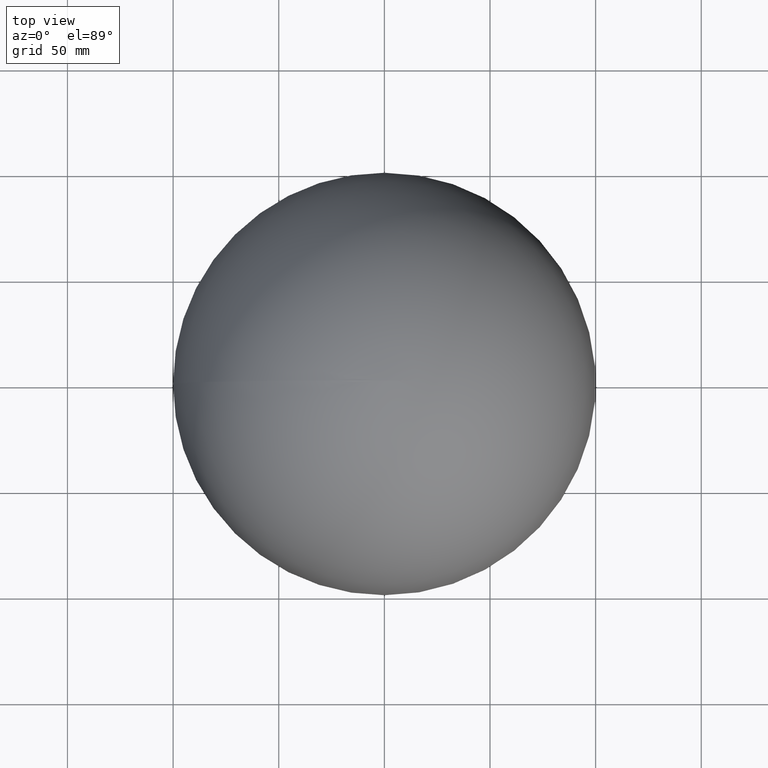
[diagram: clean part render]
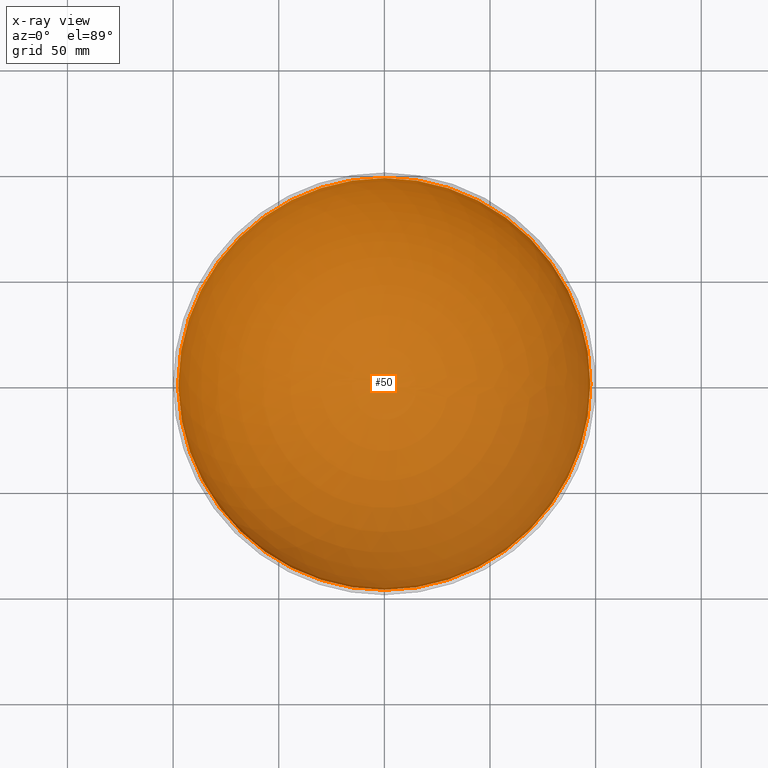
[diagram: x-ray — body ghosted, one internal face saturated and labeled with its STEP entity id]
A machine part, top view, then the same camera in x-ray: the body is ghosted and one INTERNAL B-rep face — a face not visible from any outside direction — is saturated and labeled: STEP entity #50.
In plain terms, the highlighted spherical surface has radius 97.5 mm.
Its self-contained STEP definition (entity closure, byte-faithful):
#22 = CARTESIAN_POINT ( 'NONE',  ( -97.49875149336006100, 0.4915886251335469500, -0.04240117521367545200 ) ) ;
#23 = CARTESIAN_POINT ( 'NONE',  ( -97.46690454550227400, 0.9667467948717949300, -2.349025106837606500 ) ) ;
#24 = CARTESIAN_POINT ( 'NONE',  ( -97.49302600134308200, 0.4860234708867521300, -1.060029380341880100 ) ) ;
#26 = CIRCLE ( 'NONE', #5373, 97.46876534483728000 ) ;
#28 = CARTESIAN_POINT ( 'NONE',  ( -97.45236537681913100, 0.8476893993904038900, -2.927238067345034400 ) ) ;
#40 = CIRCLE ( 'NONE', #6228, 97.46637645895630400 ) ;
#48 = FACE_BOUND ( 'NONE', #3306, .T. ) ;
#50 = ADVANCED_FACE ( 'NONE', ( #2555, #5512, #617, #4250, #2327, #48, #5282 ), #4019, .F. ) ;
#52 = VERTEX_POINT ( 'NONE', #6813 ) ;
#55 = CARTESIAN_POINT ( 'NONE',  ( -97.45053442381863800, 0.8017649913930915400, -3.000224169987669100 ) ) ;
#70 = VERTEX_POINT ( 'NONE', #8948 ) ;
#75 = CARTESIAN_POINT ( 'NONE',  ( -97.41674955441452300, 0.8649839743589744500, -3.934299045138890600 ) ) ;
#106 = CARTESIAN_POINT ( 'NONE',  ( 0.0000000000000000000, 0.0000000000000000000, 0.0000000000000000000 ) ) ;
#112 = EDGE_CURVE ( 'NONE', #8967, #5897, #1871, .T. ) ;
#114 = AXIS2_PLACEMENT_3D ( 'NONE', #7071, #1958, #545 ) ;
#130 = EDGE_CURVE ( 'NONE', #7684, #3963, #1759, .T. ) ;
#131 = CARTESIAN_POINT ( 'NONE',  ( 0.0000000000000000000, 0.0000000000000000000, -0.4579326923076936800 ) ) ;
#138 = CARTESIAN_POINT ( 'NONE',  ( -97.46380191680398800, -2.424679487179487700, -1.085470085470086900 ) ) ;
#142 = CARTESIAN_POINT ( 'NONE',  ( -97.49452209580248100, 0.6307925096756610300, -0.8204530942246799400 ) ) ;
#164 = CARTESIAN_POINT ( 'NONE',  ( -97.49267410986000500, 0.5525234058672243700, -1.061903324906507500 ) ) ;
#168 = CARTESIAN_POINT ( 'NONE',  ( -97.49512369082177100, 0.5236545138888890600, -0.8225827991452993000 ) ) ;
#169 = DIRECTION ( 'NONE',  ( -0.0000000000000000000, -1.000000000000000000, 0.0000000000000000000 ) ) ;
#185 = B_SPLINE_CURVE_WITH_KNOTS ( 'NONE', 3,
 ( #8765, #2183, #7999, #3707, #2849, #9362, #7263, #4434, #4369, #75 ),
 .UNSPECIFIED., .F., .F.,
 ( 4, 2, 2, 2, 4 ),
 ( 0.0000000000000000000, 0.0001111969289927648700, 0.0002223938579855297500, 0.0003335907869782946300, 0.0004447877159710594900 ),
 .UNSPECIFIED. ) ;
#205 = DIRECTION ( 'NONE',  ( -0.0000000000000000000, -1.000000000000000000, 0.0000000000000000000 ) ) ;
#211 = CARTESIAN_POINT ( 'NONE',  ( -97.47804611334383700, -2.017628205128205700, -0.4579326923076936800 ) ) ;
#239 = CARTESIAN_POINT ( 'NONE',  ( -97.49323537768566400, 0.8822368170428671600, -0.7372835573060537700 ) ) ;
#244 = EDGE_CURVE ( 'NONE', #1901, #9351, #7100, .T. ) ;
#251 = ORIENTED_EDGE ( 'NONE', *, *, #300, .F. ) ;
#275 = CARTESIAN_POINT ( 'NONE',  ( -97.45877916308654700, -1.881944444444444900, -2.120058760683762900 ) ) ;
#286 = ORIENTED_EDGE ( 'NONE', *, *, #8559, .F. ) ;
#300 = EDGE_CURVE ( 'NONE', #1361, #3036, #611, .T. ) ;
#304 = ORIENTED_EDGE ( 'NONE', *, *, #635, .F. ) ;
#305 = VERTEX_POINT ( 'NONE', #8704 ) ;
#306 = DIRECTION ( 'NONE',  ( -0.0000000000000000000, -0.0000000000000000000, -1.000000000000000000 ) ) ;
#307 = DIRECTION ( 'NONE',  ( -0.0000000000000000000, -1.000000000000000000, 0.0000000000000000000 ) ) ;
#351 = VERTEX_POINT ( 'NONE', #4317 ) ;
#352 = DIRECTION ( 'NONE',  ( 0.0000000000000000000, 0.6744544184908599600, -0.7383164886267648000 ) ) ;
#354 = DIRECTION ( 'NONE',  ( 1.224646799147353200E-016, -1.499759782661853200E-032, -1.000000000000000000 ) ) ;
#356 = EDGE_CURVE ( 'NONE', #4519, #6943, #961, .T. ) ;
#368 = CARTESIAN_POINT ( 'NONE',  ( -97.41626125290767400, 0.9825427979645892100, -3.918922818766567700 ) ) ;
#370 = B_SPLINE_CURVE_WITH_KNOTS ( 'NONE', 3,
 ( #168, #3156, #142, #8152, #6756, #239, #5317, #4486, #5261, #1657, #1687, #4592 ),
 .UNSPECIFIED., .F., .F.,
 ( 4, 2, 2, 2, 2, 4 ),
 ( 0.0000000000000000000, 0.0001605691954292802900, 0.0003211383908585605800, 0.0004817075862878408700, 0.0005619921840024809900, 0.0006422767817171211600 ),
 .UNSPECIFIED. ) ;
#383 = CARTESIAN_POINT ( 'NONE',  ( 0.0000000000000000000, 0.0000000000000000000, -0.8225827991452993000 ) ) ;
#404 = CARTESIAN_POINT ( 'NONE',  ( -97.49645106367165700, 0.8253139949447277900, -0.1117891112503376200 ) ) ;
#409 = CARTESIAN_POINT ( 'NONE',  ( -97.49482543314552200, 0.8638441780213533800, -0.5141500870935684600 ) ) ;
#414 = VERTEX_POINT ( 'NONE', #3806 ) ;
#419 = AXIS2_PLACEMENT_3D ( 'NONE', #9150, #7830, #6327 ) ;
#464 = AXIS2_PLACEMENT_3D ( 'NONE', #4603, #1801, #5392 ) ;
#478 = B_SPLINE_CURVE_WITH_KNOTS ( 'NONE', 3,
 ( #2641, #4920, #5562, #7700, #6295, #1212, #7053, #7112, #7018, #3491 ),
 .UNSPECIFIED., .F., .F.,
 ( 4, 2, 2, 2, 4 ),
 ( 0.0000000000000000000, 0.0001111689123031931600, 0.0002223378246063863200, 0.0003335067369095794900, 0.0004446756492127726300 ),
 .UNSPECIFIED. ) ;
#489 = EDGE_CURVE ( 'NONE', #9351, #3170, #1979, .T. ) ;
#511 = CARTESIAN_POINT ( 'NONE',  ( -97.49696252703185500, 0.7696089932902087100, -1.187900181053112200E-014 ) ) ;
#516 = CARTESIAN_POINT ( 'NONE',  ( -97.44981677943017900, 0.5648558276947351900, -3.076385468274722700 ) ) ;
#526 = DIRECTION ( 'NONE',  ( 0.0000000000000000000, 0.0000000000000000000, -1.000000000000000000 ) ) ;
#534 = CIRCLE ( 'NONE', #4251, 97.46081734835738100 ) ;
#539 = VERTEX_POINT ( 'NONE', #7630 ) ;
#543 = CARTESIAN_POINT ( 'NONE',  ( -97.47823227940348500, 0.8974924142080005200, -1.854769966672509700 ) ) ;
#545 = DIRECTION ( 'NONE',  ( 1.000000000000000000, 0.0000000000000000000, 0.0000000000000000000 ) ) ;
#573 = CARTESIAN_POINT ( 'NONE',  ( -97.45485390545695700, 0.9825427050646232700, -2.799528917349371100 ) ) ;
#591 = CARTESIAN_POINT ( 'NONE',  ( 0.0000000000000000000, 0.0000000000000000000, -2.467748397435897400 ) ) ;
#596 = AXIS2_PLACEMENT_3D ( 'NONE', #8616, #1498, #7203 ) ;
#611 = CIRCLE ( 'NONE', #5492, 97.44731327880973000 ) ;
#617 = FACE_BOUND ( 'NONE', #6058, .T. ) ;
#620 = AXIS2_PLACEMENT_3D ( 'NONE', #6075, #354, #6800 ) ;
#631 = CARTESIAN_POINT ( 'NONE',  ( 0.0000000000000000000, 0.9667467948717949300, 0.0000000000000000000 ) ) ;
#635 = EDGE_CURVE ( 'NONE', #7352, #539, #40, .T. ) ;
#645 = CARTESIAN_POINT ( 'NONE',  ( -97.49302600134308200, 0.4860234708867521300, -1.060029380341880100 ) ) ;
#653 = CARTESIAN_POINT ( 'NONE',  ( -97.44954031140441900, 0.6383487869545867400, -3.070821445348143300 ) ) ;
#661 = CARTESIAN_POINT ( 'NONE',  ( 0.0000000000000000000, 0.0000000000000000000, 0.0000000000000000000 ) ) ;
#681 = CARTESIAN_POINT ( 'NONE',  ( -97.40999227415119300, -3.204861111111111600, -2.696714743589743600 ) ) ;
#684 = AXIS2_PLACEMENT_3D ( 'NONE', #4301, #1489, #7944 ) ;
#693 = ORIENTED_EDGE ( 'NONE', *, *, #8371, .F. ) ;
#710 = EDGE_CURVE ( 'NONE', #2158, #971, #8444, .T. ) ;
#711 = ORIENTED_EDGE ( 'NONE', *, *, #8410, .F. ) ;
#738 = CARTESIAN_POINT ( 'NONE',  ( -97.49295979065691100, 0.1769249268795502200, -1.160114135672445400 ) ) ;
#749 = AXIS2_PLACEMENT_3D ( 'NONE', #887, #2980, #2376 ) ;
#754 = B_SPLINE_CURVE_WITH_KNOTS ( 'NONE', 3,
 ( #8354, #409, #5498, #6921, #1150, #6955, #1113, #6195, #1845, #7631 ),
 .UNSPECIFIED., .F., .F.,
 ( 4, 2, 2, 2, 4 ),
 ( 0.0000000000000000000, 0.0001174710970038470800, 0.0002349421940076941600, 0.0003524132910115412400, 0.0004698843880153883200 ),
 .UNSPECIFIED. ) ;
#766 = ORIENTED_EDGE ( 'NONE', *, *, #9073, .F. ) ;
#777 = VERTEX_POINT ( 'NONE', #5827 ) ;
#781 = EDGE_CURVE ( 'NONE', #7286, #6154, #6193, .T. ) ;
#816 = AXIS2_PLACEMENT_3D ( 'NONE', #5402, #1159, #7612 ) ;
#835 = CIRCLE ( 'NONE', #3732, 97.46984625710892700 ) ;
#838 = DIRECTION ( 'NONE',  ( 0.0000000000000000000, 0.0000000000000000000, -1.000000000000000000 ) ) ;
#846 = CARTESIAN_POINT ( 'NONE',  ( -97.49500772264464400, 0.8649839743589744500, -0.4746281550480772000 ) ) ;
#878 = ORIENTED_EDGE ( 'NONE', *, *, #5110, .F. ) ;
#887 = CARTESIAN_POINT ( 'NONE',  ( 0.0000000000000000000, 0.0000000000000000000, -4.197716346153848500 ) ) ;
#903 = CIRCLE ( 'NONE', #5399, 97.46269917046063800 ) ;
#905 = DIRECTION ( 'NONE',  ( -0.0000000000000000000, -0.0000000000000000000, -1.000000000000000000 ) ) ;
#906 = VERTEX_POINT ( 'NONE', #6806 ) ;
#935 = CARTESIAN_POINT ( 'NONE',  ( -97.46813857029344800, 0.3495446881677350400, -2.467748397435897400 ) ) ;
#936 = DIRECTION ( 'NONE',  ( 0.0000000000000000000, 0.0000000000000000000, 1.000000000000000000 ) ) ;
#954 = ORIENTED_EDGE ( 'NONE', *, *, #2302, .F. ) ;
#958 = CARTESIAN_POINT ( 'NONE',  ( -97.45379322562622800, 0.9837072649572650200, -2.835578592414529800 ) ) ;
#961 = CIRCLE ( 'NONE', #8872, 97.43399012028301300 ) ;
#962 = CARTESIAN_POINT ( 'NONE',  ( 0.0000000000000000000, 0.0000000000000000000, -2.696714743589743600 ) ) ;
#971 = VERTEX_POINT ( 'NONE', #9002 ) ;
#989 = CARTESIAN_POINT ( 'NONE',  ( -97.43266125268989700, 0.5239997618470853000, -3.586020963790001600 ) ) ;
#1009 = DIRECTION ( 'NONE',  ( 1.000000000000000000, 0.0000000000000000000, 0.0000000000000000000 ) ) ;
#1017 = EDGE_CURVE ( 'NONE', #2680, #7914, #7215, .T. ) ;
#1019 = AXIS2_PLACEMENT_3D ( 'NONE', #131, #8076, #5975 ) ;
#1022 = VERTEX_POINT ( 'NONE', #4805 ) ;
#1025 = CARTESIAN_POINT ( 'NONE',  ( -97.40781885064325300, 0.6566798250246548300, -4.187593437259946100 ) ) ;
#1032 = DIRECTION ( 'NONE',  ( 0.0000000000000000000, 0.0000000000000000000, 1.000000000000000000 ) ) ;
#1036 = ORIENTED_EDGE ( 'NONE', *, *, #1942, .F. ) ;
#1044 = CARTESIAN_POINT ( 'NONE',  ( -97.40440620866324700, 0.0000000000000000000, -4.316439636752138900 ) ) ;
#1052 = CIRCLE ( 'NONE', #2571, 97.44731327880973000 ) ;
#1069 = DIRECTION ( 'NONE',  ( -0.0000000000000000000, 0.6929516293246059700, -0.7209840770893445300 ) ) ;
#1070 = CARTESIAN_POINT ( 'NONE',  ( -97.44452788484191800, -1.881944444444444900, -2.696714743589743600 ) ) ;
#1083 = DIRECTION ( 'NONE',  ( -1.000000000000000000, 0.0000000000000000000, 0.0000000000000000000 ) ) ;
#1084 = CARTESIAN_POINT ( 'NONE',  ( 0.0000000000000000000, 0.0000000000000000000, 0.0000000000000000000 ) ) ;
#1092 = AXIS2_PLACEMENT_3D ( 'NONE', #962, #8149, #3794 ) ;
#1097 = DIRECTION ( 'NONE',  ( -0.0000000000000000000, -1.000000000000000000, 0.0000000000000000000 ) ) ;
#1098 = CARTESIAN_POINT ( 'NONE',  ( -97.44756990391393000, 0.0000000000000000000, -3.197048611111110700 ) ) ;
#1108 = CARTESIAN_POINT ( 'NONE',  ( -97.49673955493742000, 0.7882031215545668400, -0.1270454675139560700 ) ) ;
#1113 = CARTESIAN_POINT ( 'NONE',  ( -97.49513940135548800, 0.6818080566968455200, -0.6960512066507500400 ) ) ;
#1115 = CARTESIAN_POINT ( 'NONE',  ( 0.0000000000000000000, -1.881944444444444900, 0.0000000000000000000 ) ) ;
#1119 = ORIENTED_EDGE ( 'NONE', *, *, #2427, .F. ) ;
#1139 = EDGE_CURVE ( 'NONE', #6912, #906, #7643, .T. ) ;
#1146 = CIRCLE ( 'NONE', #4354, 97.49395752913896700 ) ;
#1150 = CARTESIAN_POINT ( 'NONE',  ( -97.49460005572036900, 0.7922984565024484600, -0.6533066821028995500 ) ) ;
#1155 = CARTESIAN_POINT ( 'NONE',  ( 0.0000000000000000000, -3.204861111111111600, 0.0000000000000000000 ) ) ;
#1159 = DIRECTION ( 'NONE',  ( -0.0000000000000000000, -0.0000000000000000000, 1.000000000000000000 ) ) ;
#1177 = DIRECTION ( 'NONE',  ( 0.0000000000000000000, 0.0000000000000000000, -1.000000000000000000 ) ) ;
#1186 = B_SPLINE_CURVE_WITH_KNOTS ( 'NONE', 3,
 ( #5769, #1420, #5142, #6540, #3582, #5103, #7197, #8733, #5808, #7298, #1453, #6514 ),
 .UNSPECIFIED., .F., .F.,
 ( 4, 2, 2, 2, 2, 4 ),
 ( 0.0000000000000000000, 0.0001734274451444372100, 0.0003468548902888744200, 0.0005202823354333117200, 0.0006069960580055302300, 0.0006937097805777487400 ),
 .UNSPECIFIED. ) ;
#1203 = CARTESIAN_POINT ( 'NONE',  ( 0.0000000000000000000, 0.1151090138980603300, -0.1197829868165993000 ) ) ;
#1212 = CARTESIAN_POINT ( 'NONE',  ( -97.46093221385173400, 0.8152503899809111500, -2.636941071126578600 ) ) ;
#1217 = EDGE_CURVE ( 'NONE', #5673, #7459, #2084, .T. ) ;
#1218 = CARTESIAN_POINT ( 'NONE',  ( -97.41772081921980900, 0.9799478589978777300, -3.883124345528549300 ) ) ;
#1237 = DIRECTION ( 'NONE',  ( 1.000000000000000000, 0.0000000000000000000, 0.0000000000000000000 ) ) ;
#1254 = VERTEX_POINT ( 'NONE', #7151 ) ;
#1261 = DIRECTION ( 'NONE',  ( 0.0000000000000000000, 1.000000000000000000, 0.0000000000000000000 ) ) ;
#1267 = CARTESIAN_POINT ( 'NONE',  ( -97.44973535299915600, 0.5832575604077496800, -3.075586044664243300 ) ) ;
#1288 = DIRECTION ( 'NONE',  ( -0.0000000000000000000, -1.000000000000000000, 0.0000000000000000000 ) ) ;
#1299 = DIRECTION ( 'NONE',  ( 1.000000000000000000, 0.0000000000000000000, 0.0000000000000000000 ) ) ;
#1314 = CARTESIAN_POINT ( 'NONE',  ( -97.48243110971188200, 0.9837072649572650200, -1.567783453525640700 ) ) ;
#1315 = ORIENTED_EDGE ( 'NONE', *, *, #8317, .F. ) ;
#1323 = CARTESIAN_POINT ( 'NONE',  ( -97.49701197700683500, 0.7502357939369659300, -0.1407189002403848300 ) ) ;
#1345 = CARTESIAN_POINT ( 'NONE',  ( -97.49687484982466400, 0.7470536931543971800, -0.2331944377129486800 ) ) ;
#1361 = VERTEX_POINT ( 'NONE', #2186 ) ;
#1379 = CARTESIAN_POINT ( 'NONE',  ( -97.41129604487387900, 0.8360653608611721100, -4.073233309772039200 ) ) ;
#1381 = CARTESIAN_POINT ( 'NONE',  ( -97.49867047226614100, 0.4854985477471095400, -0.1629421106257722700 ) ) ;
#1382 = VERTEX_POINT ( 'NONE', #22 ) ;
#1387 = CARTESIAN_POINT ( 'NONE',  ( 0.0000000000000000000, -3.069177350427351000, 0.0000000000000000000 ) ) ;
#1396 = AXIS2_PLACEMENT_3D ( 'NONE', #2931, #7988, #936 ) ;
#1404 = CARTESIAN_POINT ( 'NONE',  ( -97.44575202130433000, 0.6095082618822311700, -3.194881497423863500 ) ) ;
#1406 = CARTESIAN_POINT ( 'NONE',  ( -97.44126754077062500, -3.204861111111111600, -1.085470085470086900 ) ) ;
#1408 = EDGE_CURVE ( 'NONE', #2974, #6912, #3450, .T. ) ;
#1420 = CARTESIAN_POINT ( 'NONE',  ( -97.40286864859639600, 0.5516894566333886400, -4.316269181686258200 ) ) ;
#1423 = VERTEX_POINT ( 'NONE', #1098 ) ;
#1430 = CARTESIAN_POINT ( 'NONE',  ( -97.40786244186884300, 0.6747087005876067900, -4.183670956864318700 ) ) ;
#1432 = AXIS2_PLACEMENT_3D ( 'NONE', #7649, #1288, #9161 ) ;
#1433 = CARTESIAN_POINT ( 'NONE',  ( -97.45590178837750300, 0.9799472579173690300, -2.763727787603345000 ) ) ;
#1434 = CARTESIAN_POINT ( 'NONE',  ( -97.49745936070451100, 0.0000000000000000000, -0.7038595085470088500 ) ) ;
#1453 = CARTESIAN_POINT ( 'NONE',  ( -97.41361521641691500, 0.9826340940029529800, -3.984074588527100900 ) ) ;
#1467 = CARTESIAN_POINT ( 'NONE',  ( -97.44631923225031800, 0.4937086838942307800, -3.197048611111110700 ) ) ;
#1475 = CIRCLE ( 'NONE', #7868, 97.44731327880973000 ) ;
#1485 = DIRECTION ( 'NONE',  ( -0.0000000000000000000, -0.0000000000000000000, 1.000000000000000000 ) ) ;
#1489 = DIRECTION ( 'NONE',  ( -0.0000000000000000000, -0.7384398714069612100, -0.6743193281498541800 ) ) ;
#1492 = ORIENTED_EDGE ( 'NONE', *, *, #4375, .F. ) ;
#1498 = DIRECTION ( 'NONE',  ( 0.0000000000000000000, 1.000000000000000000, 0.0000000000000000000 ) ) ;
#1514 = CIRCLE ( 'NONE', #620, 97.50000000000000000 ) ;
#1527 = CARTESIAN_POINT ( 'NONE',  ( -97.49696252703185500, 0.7696089932902087100, -1.187900181053112200E-014 ) ) ;
#1543 = CARTESIAN_POINT ( 'NONE',  ( 0.0000000000000000000, 0.0000000000000000000, -0.7038595085470088500 ) ) ;
#1544 = AXIS2_PLACEMENT_3D ( 'NONE', #661, #7195, #6479 ) ;
#1554 = EDGE_CURVE ( 'NONE', #1568, #5977, #6299, .T. ) ;
#1568 = VERTEX_POINT ( 'NONE', #6646 ) ;
#1571 = EDGE_CURVE ( 'NONE', #7032, #4259, #1186, .T. ) ;
#1575 = EDGE_CURVE ( 'NONE', #7362, #9130, #185, .T. ) ;
#1587 = ORIENTED_EDGE ( 'NONE', *, *, #2306, .F. ) ;
#1590 = CARTESIAN_POINT ( 'NONE',  ( -97.48243521918934100, 0.06465352280942358900, -1.849877532012785400 ) ) ;
#1594 = EDGE_LOOP ( 'NONE', ( #1587, #7898, #6351, #2015, #7429, #5007, #3976, #251, #7954, #5863, #6266 ) ) ;
#1601 = CIRCLE ( 'NONE', #2415, 97.44731327880973000 ) ;
#1619 = CARTESIAN_POINT ( 'NONE',  ( -97.48017549236425300, 0.1672196347489316400, -1.958934294871794300 ) ) ;
#1625 = CARTESIAN_POINT ( 'NONE',  ( -97.48351197580468900, 0.9818166217542984000, -1.501763101836096600 ) ) ;
#1644 = DIRECTION ( 'NONE',  ( 1.000000000000000000, 0.0000000000000000000, 0.0000000000000000000 ) ) ;
#1652 = CARTESIAN_POINT ( 'NONE',  ( -97.40786962258285100, 0.6199813295336834600, -4.191963590124296400 ) ) ;
#1653 = CARTESIAN_POINT ( 'NONE',  ( -97.48680411823444600, 0.9230790246965319100, -1.313520767571101400 ) ) ;
#1655 = VERTEX_POINT ( 'NONE', #5939 ) ;
#1657 = CARTESIAN_POINT ( 'NONE',  ( -97.49351984754683500, 0.9810012639730808500, -0.5494869668306411300 ) ) ;
#1659 = CARTESIAN_POINT ( 'NONE',  ( 0.0000000000000000000, 0.0000000000000000000, -1.958934294871794300 ) ) ;
#1678 = CARTESIAN_POINT ( 'NONE',  ( -97.43828862173208400, 0.0000000000000000000, -3.468416132478634200 ) ) ;
#1686 = CARTESIAN_POINT ( 'NONE',  ( -97.45551854854537100, 0.8649839743589744500, -2.814908019497862800 ) ) ;
#1687 = CARTESIAN_POINT ( 'NONE',  ( -97.49365233198818700, 0.9826885243711990200, -0.5223111711663248600 ) ) ;
#1692 = EDGE_CURVE ( 'NONE', #7459, #2158, #7311, .T. ) ;
#1718 = CARTESIAN_POINT ( 'NONE',  ( -97.47579207065504600, -1.881944444444444900, -1.085470085470086900 ) ) ;
#1723 = VERTEX_POINT ( 'NONE', #5861 ) ;
#1744 = DIRECTION ( 'NONE',  ( 1.000000000000000000, 0.0000000000000000000, 0.0000000000000000000 ) ) ;
#1749 = CIRCLE ( 'NONE', #5445, 97.47912174627894900 ) ;
#1755 = DIRECTION ( 'NONE',  ( 1.000000000000000000, -1.224646799147349500E-016, 0.0000000000000000000 ) ) ;
#1756 = B_SPLINE_CURVE_WITH_KNOTS ( 'NONE', 3,
 ( #935, #8235, #5375, #8974 ),
 .UNSPECIFIED., .F., .F.,
 ( 4, 4 ),
 ( 5.421010862427522200E-020, 0.0002607504732827303600 ),
 .UNSPECIFIED. ) ;
#1759 = CIRCLE ( 'NONE', #7122, 97.48183566751309600 ) ;
#1760 = CARTESIAN_POINT ( 'NONE',  ( -97.45612417921657300, -1.881944444444444900, -2.238782051282053300 ) ) ;
#1765 = CARTESIAN_POINT ( 'NONE',  ( -97.49605023985446900, 0.5241845285790598400, -0.7038595085470088500 ) ) ;
#1769 = CARTESIAN_POINT ( 'NONE',  ( -97.45139256686427100, 0.0000000000000000000, -3.078325320512820300 ) ) ;
#1773 = DIRECTION ( 'NONE',  ( 0.0000000000000000000, 0.0000000000000000000, -1.000000000000000000 ) ) ;
#1778 = AXIS2_PLACEMENT_3D ( 'NONE', #7759, #6288, #6958 ) ;
#1794 = ORIENTED_EDGE ( 'NONE', *, *, #3396, .F. ) ;
#1801 = DIRECTION ( 'NONE',  ( -0.0000000000000000000, -0.0000000000000000000, 1.000000000000000000 ) ) ;
#1803 = ORIENTED_EDGE ( 'NONE', *, *, #4980, .F. ) ;
#1804 = CARTESIAN_POINT ( 'NONE',  ( -97.40815644199211900, 0.7301397832459056700, -4.167587037837603400 ) ) ;
#1809 = CIRCLE ( 'NONE', #2907, 97.48183566751309600 ) ;
#1810 = EDGE_CURVE ( 'NONE', #8914, #9272, #478, .T. ) ;
#1811 = AXIS2_PLACEMENT_3D ( 'NONE', #631, #3493, #7054 ) ;
#1824 = CIRCLE ( 'NONE', #2894, 97.49985847144081700 ) ;
#1845 = CARTESIAN_POINT ( 'NONE',  ( -97.49583835188559500, 0.5637211362165959200, -0.7037654017421954800 ) ) ;
#1847 = CARTESIAN_POINT ( 'NONE',  ( 0.0000000000000000000, 0.0000000000000000000, -2.577991452991453200 ) ) ;
#1869 = CARTESIAN_POINT ( 'NONE',  ( -97.40798970276837600, 0.7025830737500690100, -4.176212603993529400 ) ) ;
#1870 = CARTESIAN_POINT ( 'NONE',  ( -97.47307798115036800, -2.017628205128205700, -1.085470085470086900 ) ) ;
#1871 = CIRCLE ( 'NONE', #7775, 97.50000000000000000 ) ;
#1874 = B_SPLINE_CURVE_WITH_KNOTS ( 'NONE', 3,
 ( #7977, #4744, #7399, #4030, #1379, #4627, #8257, #1804, #1869, #2565 ),
 .UNSPECIFIED., .F., .F.,
 ( 4, 2, 2, 2, 4 ),
 ( 0.0000000000000000000, 8.529227251743447700E-005, 0.0001705845450348689500, 0.0002558768175523034600, 0.0003411690900697379100 ),
 .UNSPECIFIED. ) ;
#1882 = AXIS2_PLACEMENT_3D ( 'NONE', #8840, #4508, #6720 ) ;
#1901 = VERTEX_POINT ( 'NONE', #1434 ) ;
#1914 = CARTESIAN_POINT ( 'NONE',  ( -97.48008450745101100, 0.9643557656372365700, -1.718897648635497700 ) ) ;
#1932 = CARTESIAN_POINT ( 'NONE',  ( -97.43076812503098000, 0.7923719618055555800, -3.587139423076925100 ) ) ;
#1942 = EDGE_CURVE ( 'NONE', #4316, #777, #3445, .T. ) ;
#1958 = DIRECTION ( 'NONE',  ( -0.0000000000000000000, -0.0000000000000000000, -1.000000000000000000 ) ) ;
#1963 = DIRECTION ( 'NONE',  ( 0.0000000000000000000, 0.0000000000000000000, 1.000000000000000000 ) ) ;
#1979 = CIRCLE ( 'NONE', #6466, 97.49652997691021000 ) ;
#1980 = CARTESIAN_POINT ( 'NONE',  ( -97.48121577420073400, 0.9804329856011608800, -1.644016147565913600 ) ) ;
#2005 = CARTESIAN_POINT ( 'NONE',  ( -97.48182802636061700, 0.9826562637362070700, -1.605941726368244900 ) ) ;
#2011 = CARTESIAN_POINT ( 'NONE',  ( 0.0000000000000000000, -2.017628205128205700, 0.0000000000000000000 ) ) ;
#2014 = ORIENTED_EDGE ( 'NONE', *, *, #2383, .F. ) ;
#2015 = ORIENTED_EDGE ( 'NONE', *, *, #7041, .F. ) ;
#2026 = CARTESIAN_POINT ( 'NONE',  ( -97.47713497162104100, 0.7878668369391025300, -1.958934294871794300 ) ) ;
#2030 = ORIENTED_EDGE ( 'NONE', *, *, #3770, .F. ) ;
#2079 = CARTESIAN_POINT ( 'NONE',  ( -97.44950100434228100, 0.6566798027395962500, -3.068202416467404900 ) ) ;
#2084 = CIRCLE ( 'NONE', #3664, 97.47169887227495600 ) ;
#2092 = VERTEX_POINT ( 'NONE', #846 ) ;
#2099 = CARTESIAN_POINT ( 'NONE',  ( -97.49768963846659600, 0.6481238052762543500, -0.1830984513376472700 ) ) ;
#2119 = CARTESIAN_POINT ( 'NONE',  ( -97.41478602007566700, 0.9837072649572650200, -3.954969618055557100 ) ) ;
#2122 = EDGE_CURVE ( 'NONE', #971, #8914, #1756, .T. ) ;
#2131 = CARTESIAN_POINT ( 'NONE',  ( -97.49644385075062300, 0.7891686703069065200, -0.2714223049205933800 ) ) ;
#2141 = VERTEX_POINT ( 'NONE', #8184 ) ;
#2155 = CARTESIAN_POINT ( 'NONE',  ( -97.44949951986646400, 0.6747087005876067900, -3.064279931223290500 ) ) ;
#2158 = VERTEX_POINT ( 'NONE', #3852 ) ;
#2168 = VERTEX_POINT ( 'NONE', #1718 ) ;
#2169 = CARTESIAN_POINT ( 'NONE',  ( -97.49121730954289000, 0.04483442034802141000, -1.309520316414411800 ) ) ;
#2183 = CARTESIAN_POINT ( 'NONE',  ( -97.43079885413496300, 0.6449933874921720500, -3.615912749799402400 ) ) ;
#2186 = CARTESIAN_POINT ( 'NONE',  ( -97.39107452198861400, -3.204861111111111200, -3.310206747462606000 ) ) ;
#2187 = AXIS2_PLACEMENT_3D ( 'NONE', #3970, #2576, #4092 ) ;
#2233 = VERTEX_POINT ( 'NONE', #5501 ) ;
#2245 = CIRCLE ( 'NONE', #6762, 97.50000000000000000 ) ;
#2273 = VERTEX_POINT ( 'NONE', #2515 ) ;
#2274 = ORIENTED_EDGE ( 'NONE', *, *, #4420, .F. ) ;
#2277 = DIRECTION ( 'NONE',  ( -1.000000000000000000, 3.561595462997502700E-013, 0.0000000000000000000 ) ) ;
#2302 = EDGE_CURVE ( 'NONE', #7926, #8387, #6413, .T. ) ;
#2303 = AXIS2_PLACEMENT_3D ( 'NONE', #3908, #6843, #5311 ) ;
#2306 = EDGE_CURVE ( 'NONE', #3963, #3856, #4690, .T. ) ;
#2323 = AXIS2_PLACEMENT_3D ( 'NONE', #2553, #3941, #9010 ) ;
#2325 = CARTESIAN_POINT ( 'NONE',  ( -97.48031891837641200, 0.0000000000000000000, -1.958934294871794300 ) ) ;
#2327 = FACE_BOUND ( 'NONE', #7676, .T. ) ;
#2342 = ORIENTED_EDGE ( 'NONE', *, *, #1408, .F. ) ;
#2350 = DIRECTION ( 'NONE',  ( 0.0000000000000000000, 0.0000000000000000000, 1.000000000000000000 ) ) ;
#2355 = AXIS2_PLACEMENT_3D ( 'NONE', #6850, #1069, #3945 ) ;
#2369 = CIRCLE ( 'NONE', #6809, 97.49520706493528600 ) ;
#2370 = EDGE_CURVE ( 'NONE', #2168, #8845, #2990, .T. ) ;
#2376 = DIRECTION ( 'NONE',  ( -1.000000000000000000, 2.122746423083299600E-013, 0.0000000000000000000 ) ) ;
#2383 = EDGE_CURVE ( 'NONE', #414, #2233, #1514, .T. ) ;
#2415 = AXIS2_PLACEMENT_3D ( 'NONE', #3655, #8699, #9309 ) ;
#2421 = CARTESIAN_POINT ( 'NONE',  ( -97.42890238931434500, -2.566458416800213800, -2.696714743589743600 ) ) ;
#2427 = EDGE_CURVE ( 'NONE', #1655, #5426, #1052, .T. ) ;
#2428 = AXIS2_PLACEMENT_3D ( 'NONE', #6669, #7387, #3890 ) ;
#2432 = CARTESIAN_POINT ( 'NONE',  ( -97.42770403824302200, -1.881944444444444900, -3.248195028712606900 ) ) ;
#2438 = EDGE_CURVE ( 'NONE', #6218, #351, #6404, .T. ) ;
#2479 = EDGE_LOOP ( 'NONE', ( #954, #7271, #8692, #8162, #5745, #9342, #5342, #1119, #1492, #8271, #8850, #3611 ) ) ;
#2490 = DIRECTION ( 'NONE',  ( 0.0000000000000000000, 0.0000000000000000000, -1.000000000000000000 ) ) ;
#2493 = VERTEX_POINT ( 'NONE', #2763 ) ;
#2499 = CIRCLE ( 'NONE', #2303, 97.45139256686427100 ) ;
#2501 = ORIENTED_EDGE ( 'NONE', *, *, #1575, .F. ) ;
#2515 = CARTESIAN_POINT ( 'NONE',  ( -97.46449837035197600, -2.628205128205128600, -0.1187232905982907000 ) ) ;
#2531 = CARTESIAN_POINT ( 'NONE',  ( 0.0000000000000000000, 0.0000000000000000000, -0.4579326923076936800 ) ) ;
#2532 = EDGE_CURVE ( 'NONE', #7154, #7072, #26, .T. ) ;
#2553 = CARTESIAN_POINT ( 'NONE',  ( 0.0000000000000000000, 0.0000000000000000000, -2.467748397435897400 ) ) ;
#2555 = FACE_OUTER_BOUND ( 'NONE', #2622, .T. ) ;
#2558 = CARTESIAN_POINT ( 'NONE',  ( 0.0000000000000000000, -2.763888888888889300, 0.0000000000000000000 ) ) ;
#2565 = CARTESIAN_POINT ( 'NONE',  ( -97.40786244186884300, 0.6747087005876067900, -4.183670956864318700 ) ) ;
#2569 = ORIENTED_EDGE ( 'NONE', *, *, #2532, .F. ) ;
#2570 = CARTESIAN_POINT ( 'NONE',  ( -97.42159267937137200, -3.204861111111111600, -2.238782051282053300 ) ) ;
#2571 = AXIS2_PLACEMENT_3D ( 'NONE', #1155, #6260, #9087 ) ;
#2576 = DIRECTION ( 'NONE',  ( -0.0000000000000000000, -0.0000000000000000000, -1.000000000000000000 ) ) ;
#2581 = DIRECTION ( 'NONE',  ( -0.0000000000000000000, -0.0000000000000000000, -1.000000000000000000 ) ) ;
#2589 = AXIS2_PLACEMENT_3D ( 'NONE', #7008, #4847, #1177 ) ;
#2595 = CIRCLE ( 'NONE', #596, 97.48183566751309600 ) ;
#2606 = EDGE_CURVE ( 'NONE', #906, #6845, #5145, .T. ) ;
#2622 = EDGE_LOOP ( 'NONE', ( #9070, #9260, #2014, #8112, #6544, #5923, #5436, #7126, #7389, #4051, #3660, #2274, #1803, #3378, #5358, #5150, #3056, #7231, #7128 ) ) ;
#2641 = CARTESIAN_POINT ( 'NONE',  ( -97.46639816063859000, 0.6089868790064102400, -2.486033904246794700 ) ) ;
#2680 = VERTEX_POINT ( 'NONE', #1430 ) ;
#2685 = AXIS2_PLACEMENT_3D ( 'NONE', #6913, #5359, #9044 ) ;
#2712 = EDGE_CURVE ( 'NONE', #5246, #3863, #835, .T. ) ;
#2747 = CARTESIAN_POINT ( 'NONE',  ( -97.49500772264464400, 0.8649839743589744500, -0.4746281550480772000 ) ) ;
#2758 = CARTESIAN_POINT ( 'NONE',  ( -97.44966349043610900, 0.6016454857184376800, -3.074320669636216900 ) ) ;
#2763 = CARTESIAN_POINT ( 'NONE',  ( -97.45060517021400400, -3.069177350427351000, -0.4579326923076936800 ) ) ;
#2784 = DIRECTION ( 'NONE',  ( -0.0000000000000000000, -0.0000000000000000000, -1.000000000000000000 ) ) ;
#2790 = ORIENTED_EDGE ( 'NONE', *, *, #1139, .F. ) ;
#2794 = CARTESIAN_POINT ( 'NONE',  ( -97.49377928456229400, 0.9837072649572650200, -0.4952987279647437200 ) ) ;
#2809 = DIRECTION ( 'NONE',  ( 0.0000000000000000000, 0.0000000000000000000, -1.000000000000000000 ) ) ;
#2849 = CARTESIAN_POINT ( 'NONE',  ( -97.42682655014053200, 0.7686804838244857300, -3.697837050622742700 ) ) ;
#2894 = AXIS2_PLACEMENT_3D ( 'NONE', #1203, #4757, #3332 ) ;
#2907 = AXIS2_PLACEMENT_3D ( 'NONE', #6005, #3018, #5245 ) ;
#2925 = ORIENTED_EDGE ( 'NONE', *, *, #3256, .F. ) ;
#2931 = CARTESIAN_POINT ( 'NONE',  ( 0.0000000000000000000, -2.560363247863248300, 0.0000000000000000000 ) ) ;
#2937 = ORIENTED_EDGE ( 'NONE', *, *, #7941, .F. ) ;
#2940 = CIRCLE ( 'NONE', #2428, 97.48031891837641200 ) ;
#2948 = CIRCLE ( 'NONE', #8181, 97.48934133654621800 ) ;
#2961 = ORIENTED_EDGE ( 'NONE', *, *, #6580, .F. ) ;
#2967 = EDGE_CURVE ( 'NONE', #8463, #4519, #5371, .T. ) ;
#2974 = VERTEX_POINT ( 'NONE', #8452 ) ;
#2980 = DIRECTION ( 'NONE',  ( -0.0000000000000000000, -0.0000000000000000000, 1.000000000000000000 ) ) ;
#2984 = AXIS2_PLACEMENT_3D ( 'NONE', #5064, #5702, #2809 ) ;
#2990 = CIRCLE ( 'NONE', #5067, 97.48183566751309600 ) ;
#3008 = CARTESIAN_POINT ( 'NONE',  ( -97.43141200894166300, 0.6089868790064102400, -3.605424929887822500 ) ) ;
#3018 = DIRECTION ( 'NONE',  ( 0.0000000000000000000, 1.000000000000000000, 0.0000000000000000000 ) ) ;
#3022 = CARTESIAN_POINT ( 'NONE',  ( -97.48305900125649300, 0.04434791253965929300, -1.817317267972067900 ) ) ;
#3033 = EDGE_CURVE ( 'NONE', #4433, #1423, #4222, .T. ) ;
#3036 = VERTEX_POINT ( 'NONE', #5740 ) ;
#3055 = DIRECTION ( 'NONE',  ( -0.0000000000000000000, -0.0000000000000000000, 1.000000000000000000 ) ) ;
#3056 = ORIENTED_EDGE ( 'NONE', *, *, #9090, .F. ) ;
#3057 = CARTESIAN_POINT ( 'NONE',  ( 0.0000000000000000000, 0.0000000000000000000, -1.441639957264959200 ) ) ;
#3086 = CARTESIAN_POINT ( 'NONE',  ( 0.0000000000000000000, -2.643342918306001500, -2.414702012349692100 ) ) ;
#3118 = CARTESIAN_POINT ( 'NONE',  ( -97.48126562416764800, 0.1114676104623875300, -1.908358065771501100 ) ) ;
#3123 = CARTESIAN_POINT ( 'NONE',  ( -97.48787324282351100, 0.8858275493885122700, -1.258669196188948200 ) ) ;
#3127 = DIRECTION ( 'NONE',  ( -0.0000000000000000000, -0.0000000000000000000, 1.000000000000000000 ) ) ;
#3130 = DIRECTION ( 'NONE',  ( 0.0000000000000000000, 0.0000000000000000000, 1.000000000000000000 ) ) ;
#3156 = CARTESIAN_POINT ( 'NONE',  ( -97.49483788351751900, 0.5772768461604266300, -0.8223217216422317200 ) ) ;
#3165 = AXIS2_PLACEMENT_3D ( 'NONE', #1387, #7966, #4360 ) ;
#3167 = DIRECTION ( 'NONE',  ( -1.000000000000000000, 0.0000000000000000000, 0.0000000000000000000 ) ) ;
#3170 = VERTEX_POINT ( 'NONE', #8021 ) ;
#3171 = DIRECTION ( 'NONE',  ( -1.000000000000000000, 0.0000000000000000000, -1.224646799147353200E-016 ) ) ;
#3196 = DIRECTION ( 'NONE',  ( 0.0000000000000000000, 0.0000000000000000000, 1.000000000000000000 ) ) ;
#3226 = AXIS2_PLACEMENT_3D ( 'NONE', #5966, #4495, #3171 ) ;
#3227 = EDGE_CURVE ( 'NONE', #2092, #5893, #754, .T. ) ;
#3239 = CARTESIAN_POINT ( 'NONE',  ( 0.0000000000000000000, 0.0000000000000000000, -0.1611244658119660400 ) ) ;
#3246 = AXIS2_PLACEMENT_3D ( 'NONE', #1659, #3127, #7556 ) ;
#3256 = EDGE_CURVE ( 'NONE', #9130, #2680, #1874, .T. ) ;
#3258 = DIRECTION ( 'NONE',  ( 1.000000000000000000, 0.0000000000000000000, 0.0000000000000000000 ) ) ;
#3283 = CIRCLE ( 'NONE', #3226, 97.50000000000000000 ) ;
#3286 = CARTESIAN_POINT ( 'NONE',  ( 0.0000000000000000000, 0.0000000000000000000, 0.0000000000000000000 ) ) ;
#3306 = EDGE_LOOP ( 'NONE', ( #7354, #5584, #6570, #6794, #4769, #8606, #5639, #304, #5449, #766, #8383, #7694 ) ) ;
#3332 = DIRECTION ( 'NONE',  ( 0.0000000000000000000, 0.7210343373407114300, 0.6928993320646521500 ) ) ;
#3338 = CARTESIAN_POINT ( 'NONE',  ( -97.49398339757617300, 0.9822432707285963000, -0.4580290837623813800 ) ) ;
#3369 = VERTEX_POINT ( 'NONE', #3835 ) ;
#3378 = ORIENTED_EDGE ( 'NONE', *, *, #8498, .F. ) ;
#3396 = EDGE_CURVE ( 'NONE', #7914, #8967, #8752, .T. ) ;
#3445 = B_SPLINE_CURVE_WITH_KNOTS ( 'NONE', 3,
 ( #645, #7123, #4958, #6467, #738, #6595, #2169, #7961, #7246, #4478 ),
 .UNSPECIFIED., .F., .F.,
 ( 4, 2, 2, 2, 4 ),
 ( 0.0000000000000000000, 0.0001968150691381897800, 0.0003936301382763795600, 0.0005904452074145693400, 0.0007872602765527591200 ),
 .UNSPECIFIED. ) ;
#3450 = CIRCLE ( 'NONE', #4760, 97.47786076313708700 ) ;
#3485 = DIRECTION ( 'NONE',  ( -0.0000000000000000000, -0.0000000000000000000, -1.000000000000000000 ) ) ;
#3491 = CARTESIAN_POINT ( 'NONE',  ( -97.45551854854537100, 0.8649839743589744500, -2.814908019497862800 ) ) ;
#3493 = DIRECTION ( 'NONE',  ( 0.0000000000000000000, 1.000000000000000000, 0.0000000000000000000 ) ) ;
#3510 = AXIS2_PLACEMENT_3D ( 'NONE', #2531, #2784, #7600 ) ;
#3517 = CARTESIAN_POINT ( 'NONE',  ( -97.49591007047747800, 0.8914730972027699000, -0.06637207921091220500 ) ) ;
#3541 = CARTESIAN_POINT ( 'NONE',  ( -97.45908765348357900, 0.9508838650670133900, -2.659573030121147800 ) ) ;
#3550 = DIRECTION ( 'NONE',  ( 0.0000000000000000000, 0.0000000000000000000, 1.000000000000000000 ) ) ;
#3565 = CARTESIAN_POINT ( 'NONE',  ( -97.45551854854537100, 0.8649839743589744500, -2.814908019497862800 ) ) ;
#3569 = CARTESIAN_POINT ( 'NONE',  ( -97.49515233051917600, 0.8639883462228140600, -0.4467382304468901500 ) ) ;
#3579 = AXIS2_PLACEMENT_3D ( 'NONE', #9113, #5590, #1963 ) ;
#3582 = CARTESIAN_POINT ( 'NONE',  ( -97.40283476875380600, 0.7812944198654753200, -4.281438705017248700 ) ) ;
#3594 = CARTESIAN_POINT ( 'NONE',  ( -97.44559687068134200, 0.7812549660453053100, -3.162064181159693500 ) ) ;
#3596 = CARTESIAN_POINT ( 'NONE',  ( -97.46207393593799400, 0.8970237429833950400, -2.567256756389872900 ) ) ;
#3611 = ORIENTED_EDGE ( 'NONE', *, *, #4225, .F. ) ;
#3624 = CARTESIAN_POINT ( 'NONE',  ( -97.44954104456451200, 0.7025773032514133200, -3.056823122366243400 ) ) ;
#3626 = CARTESIAN_POINT ( 'NONE',  ( -97.49701197700683500, 0.7502357939369659300, -0.1407189002403848300 ) ) ;
#3651 = EDGE_CURVE ( 'NONE', #7560, #7262, #1749, .T. ) ;
#3655 = CARTESIAN_POINT ( 'NONE',  ( 0.0000000000000000000, -3.204861111111111600, 0.0000000000000000000 ) ) ;
#3660 = ORIENTED_EDGE ( 'NONE', *, *, #5090, .F. ) ;
#3664 = AXIS2_PLACEMENT_3D ( 'NONE', #7920, #3055, #6628 ) ;
#3673 = DIRECTION ( 'NONE',  ( 0.0000000000000000000, 0.0000000000000000000, -1.000000000000000000 ) ) ;
#3688 = CARTESIAN_POINT ( 'NONE',  ( -97.44949951986646400, 0.6747087005876067900, -3.064279931223290500 ) ) ;
#3707 = CARTESIAN_POINT ( 'NONE',  ( -97.42801234754546200, 0.7414552991730373200, -3.672064964484315700 ) ) ;
#3720 = ORIENTED_EDGE ( 'NONE', *, *, #781, .F. ) ;
#3721 = ORIENTED_EDGE ( 'NONE', *, *, #4624, .F. ) ;
#3732 = AXIS2_PLACEMENT_3D ( 'NONE', #8078, #8775, #838 ) ;
#3738 = DIRECTION ( 'NONE',  ( -0.0000000000000000000, -0.0000000000000000000, 1.000000000000000000 ) ) ;
#3753 = CARTESIAN_POINT ( 'NONE',  ( -97.40315498277108500, 0.4937086838942307800, -4.316439636752138900 ) ) ;
#3770 = EDGE_CURVE ( 'NONE', #1423, #7904, #6174, .T. ) ;
#3778 = CARTESIAN_POINT ( 'NONE',  ( -97.47169887227495600, 0.0000000000000000000, -2.349025106837606500 ) ) ;
#3781 = EDGE_CURVE ( 'NONE', #3170, #6859, #370, .T. ) ;
#3786 = CARTESIAN_POINT ( 'NONE',  ( -97.43336312203526000, 0.3495446881677350400, -3.587139423076925100 ) ) ;
#3788 = CARTESIAN_POINT ( 'NONE',  ( -97.48494745406293300, 0.001798310035631480000, -1.713607872316147000 ) ) ;
#3794 = DIRECTION ( 'NONE',  ( 1.000000000000000000, 0.0000000000000000000, 0.0000000000000000000 ) ) ;
#3800 = CARTESIAN_POINT ( 'NONE',  ( 0.0000000000000000000, 0.0000000000000000000, -1.085470085470086900 ) ) ;
#3806 = CARTESIAN_POINT ( 'NONE',  ( -97.49547415965049900, 0.9394244966590058500, -4.327875456963800300E-012 ) ) ;
#3811 = VERTEX_POINT ( 'NONE', #7409 ) ;
#3818 = CARTESIAN_POINT ( 'NONE',  ( -97.40786244186884300, 0.6747087005876067900, -4.183670956864318700 ) ) ;
#3835 = CARTESIAN_POINT ( 'NONE',  ( -97.44672289123057900, -3.204861111111111600, -0.3392094017094030600 ) ) ;
#3837 = VERTEX_POINT ( 'NONE', #8089 ) ;
#3852 = CARTESIAN_POINT ( 'NONE',  ( -97.46876534483728000, 0.0000000000000000000, -2.467748397435897400 ) ) ;
#3856 = VERTEX_POINT ( 'NONE', #4561 ) ;
#3860 = CIRCLE ( 'NONE', #1811, 97.49520706493528600 ) ;
#3863 = VERTEX_POINT ( 'NONE', #3913 ) ;
#3875 = EDGE_LOOP ( 'NONE', ( #2790, #2342, #8490, #4953, #8763, #1036, #2937, #6472, #5216 ) ) ;
#3890 = DIRECTION ( 'NONE',  ( -1.000000000000000000, 1.492139745096210600E-013, 0.0000000000000000000 ) ) ;
#3908 = CARTESIAN_POINT ( 'NONE',  ( 0.0000000000000000000, 0.0000000000000000000, -3.078325320512820300 ) ) ;
#3913 = CARTESIAN_POINT ( 'NONE',  ( -97.46877052181261500, -2.424679487179487700, -0.4579326923076936800 ) ) ;
#3941 = DIRECTION ( 'NONE',  ( -0.0000000000000000000, -0.0000000000000000000, -1.000000000000000000 ) ) ;
#3944 = EDGE_CURVE ( 'NONE', #4259, #7286, #5308, .T. ) ;
#3945 = DIRECTION ( 'NONE',  ( 0.0000000000000000000, -0.7209840770893445300, -0.6929516293246060800 ) ) ;
#3963 = VERTEX_POINT ( 'NONE', #5508 ) ;
#3970 = CARTESIAN_POINT ( 'NONE',  ( 0.0000000000000000000, 0.0000000000000000000, -0.1187232905982907000 ) ) ;
#3976 = ORIENTED_EDGE ( 'NONE', *, *, #6150, .F. ) ;
#3979 = CIRCLE ( 'NONE', #464, 97.47694779203567400 ) ;
#4018 = CARTESIAN_POINT ( 'NONE',  ( -97.49497471934371600, 0.9386031037860909100, -0.3167052990798486800 ) ) ;
#4019 = SPHERICAL_SURFACE ( 'NONE', #6828, 97.50000000000000000 ) ;
#4023 = DIRECTION ( 'NONE',  ( 0.0000000000000000000, 1.000000000000000000, 0.0000000000000000000 ) ) ;
#4030 = CARTESIAN_POINT ( 'NONE',  ( -97.41230495374499300, 0.8476951739973061000, -4.046612709526730400 ) ) ;
#4051 = ORIENTED_EDGE ( 'NONE', *, *, #3227, .F. ) ;
#4068 = CIRCLE ( 'NONE', #114, 97.48934133654621800 ) ;
#4085 = CARTESIAN_POINT ( 'NONE',  ( -97.49999078020643100, 0.0000000000000000000, -0.04240117521367545200 ) ) ;
#4086 = CIRCLE ( 'NONE', #4665, 97.50000000000000000 ) ;
#4092 = DIRECTION ( 'NONE',  ( 1.000000000000000000, 0.0000000000000000000, 0.0000000000000000000 ) ) ;
#4110 = AXIS2_PLACEMENT_3D ( 'NONE', #6223, #1485, #9360 ) ;
#4130 = DIRECTION ( 'NONE',  ( -0.0000000000000000000, -0.0000000000000000000, -1.000000000000000000 ) ) ;
#4155 = CARTESIAN_POINT ( 'NONE',  ( -97.42615252487598800, 0.8970322015123813900, -3.686658762276531200 ) ) ;
#4175 = CIRCLE ( 'NONE', #4558, 97.49940993145440900 ) ;
#4209 = AXIS2_PLACEMENT_3D ( 'NONE', #1847, #6104, #1083 ) ;
#4222 = CIRCLE ( 'NONE', #1544, 97.50000000000000000 ) ;
#4225 = EDGE_CURVE ( 'NONE', #8387, #1723, #1601, .T. ) ;
#4228 = CARTESIAN_POINT ( 'NONE',  ( -97.45379322562622800, 0.9837072649572650200, -2.835578592414529800 ) ) ;
#4241 = CARTESIAN_POINT ( 'NONE',  ( -97.44563563898165600, -3.069177350427351000, -1.085470085470086900 ) ) ;
#4250 = FACE_BOUND ( 'NONE', #3875, .T. ) ;
#4251 = AXIS2_PLACEMENT_3D ( 'NONE', #2558, #307, #9014 ) ;
#4259 = VERTEX_POINT ( 'NONE', #2119 ) ;
#4263 = CARTESIAN_POINT ( 'NONE',  ( -97.45016666310955600, 0.4914588402698955000, -3.078121660512065400 ) ) ;
#4267 = CARTESIAN_POINT ( 'NONE',  ( -97.46530068536343100, -2.560363247863248300, -0.4579326923076936800 ) ) ;
#4278 = VERTEX_POINT ( 'NONE', #2155 ) ;
#4286 = CIRCLE ( 'NONE', #4855, 97.40440620866324700 ) ;
#4301 = CARTESIAN_POINT ( 'NONE',  ( 0.0000000000000000000, -2.727953826613582800, -2.491078912195035400 ) ) ;
#4311 = B_SPLINE_CURVE_WITH_KNOTS ( 'NONE', 3,
 ( #5984, #1625, #4517, #1653, #3123, #4555, #6780, #8976, #164, #8912 ),
 .UNSPECIFIED., .F., .F.,
 ( 4, 2, 2, 2, 4 ),
 ( 0.0000000000000000000, 0.0001962075301447438100, 0.0003924150602894876100, 0.0005886225904342314700, 0.0007848301205789752200 ),
 .UNSPECIFIED. ) ;
#4316 = VERTEX_POINT ( 'NONE', #24 ) ;
#4317 = CARTESIAN_POINT ( 'NONE',  ( -97.44678691591478500, -2.424679487179487700, -2.120058760683762900 ) ) ;
#4321 = CARTESIAN_POINT ( 'NONE',  ( -97.44981361341959300, 0.9581692830152797000, -2.977679418422646900 ) ) ;
#4354 = AXIS2_PLACEMENT_3D ( 'NONE', #3800, #8859, #4526 ) ;
#4360 = DIRECTION ( 'NONE',  ( 0.0000000000000000000, 0.0000000000000000000, -1.000000000000000000 ) ) ;
#4369 = CARTESIAN_POINT ( 'NONE',  ( -97.41827470906798700, 0.8642754889774524300, -3.896690622721661300 ) ) ;
#4375 = EDGE_CURVE ( 'NONE', #1022, #1655, #3979, .T. ) ;
#4417 = CIRCLE ( 'NONE', #4732, 97.43424424917452600 ) ;
#4420 = EDGE_CURVE ( 'NONE', #70, #52, #7609, .T. ) ;
#4433 = VERTEX_POINT ( 'NONE', #1769 ) ;
#4434 = CARTESIAN_POINT ( 'NONE',  ( -97.41982656253613000, 0.8591516195997556100, -3.858838314085914600 ) ) ;
#4450 = DIRECTION ( 'NONE',  ( 0.0000000000000000000, 0.0000000000000000000, 1.000000000000000000 ) ) ;
#4478 = CARTESIAN_POINT ( 'NONE',  ( -97.48745245874519600, -0.01696047008547008400, -1.564073350694444200 ) ) ;
#4482 = CARTESIAN_POINT ( 'NONE',  ( -97.45379322562622800, 0.9837072649572650200, -2.835578592414529800 ) ) ;
#4486 = CARTESIAN_POINT ( 'NONE',  ( -97.49327273189557300, 0.9589992888222175200, -0.6267467650969512600 ) ) ;
#4495 = DIRECTION ( 'NONE',  ( 1.224646799147353200E-016, -1.499759782661853200E-032, -1.000000000000000000 ) ) ;
#4505 = DIRECTION ( 'NONE',  ( -0.0000000000000000000, -1.000000000000000000, 0.0000000000000000000 ) ) ;
#4508 = DIRECTION ( 'NONE',  ( -0.0000000000000000000, -0.0000000000000000000, 1.000000000000000000 ) ) ;
#4517 = CARTESIAN_POINT ( 'NONE',  ( -97.48458971195066200, 0.9725666774472299100, -1.436409283683458500 ) ) ;
#4519 = VERTEX_POINT ( 'NONE', #7689 ) ;
#4521 = CARTESIAN_POINT ( 'NONE',  ( 0.0000000000000000000, 0.0000000000000000000, 0.0000000000000000000 ) ) ;
#4526 = DIRECTION ( 'NONE',  ( 1.000000000000000000, 8.881784197001252300E-016, 0.0000000000000000000 ) ) ;
#4539 = AXIS2_PLACEMENT_3D ( 'NONE', #3239, #6072, #1009 ) ;
#4541 = ORIENTED_EDGE ( 'NONE', *, *, #112, .F. ) ;
#4555 = CARTESIAN_POINT ( 'NONE',  ( -97.48984493450097900, 0.7938896827719269500, -1.163718960940219000 ) ) ;
#4556 = EDGE_CURVE ( 'NONE', #351, #7841, #6031, .T. ) ;
#4558 = AXIS2_PLACEMENT_3D ( 'NONE', #8825, #8124, #3167 ) ;
#4560 = EDGE_CURVE ( 'NONE', #5316, #1361, #1824, .T. ) ;
#4561 = CARTESIAN_POINT ( 'NONE',  ( -97.41320662685727400, -3.204861111111111600, -2.577991452991453200 ) ) ;
#4579 = DIRECTION ( 'NONE',  ( -0.0000000000000000000, -0.0000000000000000000, -1.000000000000000000 ) ) ;
#4592 = CARTESIAN_POINT ( 'NONE',  ( -97.49377928456229400, 0.9837072649572650200, -0.4952987279647437200 ) ) ;
#4603 = CARTESIAN_POINT ( 'NONE',  ( 0.0000000000000000000, 0.0000000000000000000, -2.120058760683762900 ) ) ;
#4624 = EDGE_CURVE ( 'NONE', #4278, #305, #8778, .T. ) ;
#4627 = CARTESIAN_POINT ( 'NONE',  ( -97.40963441878518800, 0.8017800534100944000, -4.119599879856329100 ) ) ;
#4631 = DIRECTION ( 'NONE',  ( 1.000000000000000000, 0.0000000000000000000, 0.0000000000000000000 ) ) ;
#4662 = B_SPLINE_CURVE_WITH_KNOTS ( 'NONE', 3,
 ( #1467, #8707, #1404, #6493, #3594, #6553, #8644, #4321, #9376, #5056, #5275, #958 ),
 .UNSPECIFIED., .F., .F.,
 ( 4, 2, 2, 2, 2, 4 ),
 ( 0.0000000000000000000, 0.0001734042761683216000, 0.0003468085523366432100, 0.0005202128285049648700, 0.0006069149665891260800, 0.0006936171046732875000 ),
 .UNSPECIFIED. ) ;
#4665 = AXIS2_PLACEMENT_3D ( 'NONE', #8779, #5921, #4450 ) ;
#4690 = CIRCLE ( 'NONE', #4209, 97.46591178493280000 ) ;
#4713 = VERTEX_POINT ( 'NONE', #7872 ) ;
#4727 = DIRECTION ( 'NONE',  ( 0.0000000000000000000, 1.000000000000000000, 0.0000000000000000000 ) ) ;
#4732 = AXIS2_PLACEMENT_3D ( 'NONE', #3086, #8231, #352 ) ;
#4744 = CARTESIAN_POINT ( 'NONE',  ( -97.41560193953787900, 0.8641358600206435800, -3.962901475975892000 ) ) ;
#4757 = DIRECTION ( 'NONE',  ( -0.0000000000000000000, -0.6928993320646521500, 0.7210343373407115400 ) ) ;
#4760 = AXIS2_PLACEMENT_3D ( 'NONE', #9126, #2581, #6998 ) ;
#4765 = CARTESIAN_POINT ( 'NONE',  ( -97.43349554139399500, -2.385723407451922900, -2.696714743589743200 ) ) ;
#4769 = ORIENTED_EDGE ( 'NONE', *, *, #7002, .F. ) ;
#4805 = CARTESIAN_POINT ( 'NONE',  ( -97.44331629665647700, -2.560363247863248300, -2.120058760683762900 ) ) ;
#4847 = DIRECTION ( 'NONE',  ( 0.0000000000000000000, 1.000000000000000000, 0.0000000000000000000 ) ) ;
#4855 = AXIS2_PLACEMENT_3D ( 'NONE', #8903, #4579, #1644 ) ;
#4871 = EDGE_CURVE ( 'NONE', #539, #5246, #1146, .T. ) ;
#4885 = VERTEX_POINT ( 'NONE', #2432 ) ;
#4896 = CARTESIAN_POINT ( 'NONE',  ( -97.42485348600308700, 0.9176726142499394000, -3.715787416818501200 ) ) ;
#4898 = B_SPLINE_CURVE_WITH_KNOTS ( 'NONE', 3,
 ( #511, #5612, #8533, #5031, #6431, #7805 ),
 .UNSPECIFIED., .F., .F.,
 ( 4, 2, 4 ),
 ( 0.0002176700681522058800, 0.0003577509633441175800, 0.0004978318585360292800 ),
 .UNSPECIFIED. ) ;
#4908 = CARTESIAN_POINT ( 'NONE',  ( -97.44997905155565800, 0.5281836041668573900, -3.077978613974325500 ) ) ;
#4920 = CARTESIAN_POINT ( 'NONE',  ( -97.46590577971291200, 0.6449859074071213600, -2.496519545391585400 ) ) ;
#4953 = ORIENTED_EDGE ( 'NONE', *, *, #7567, .F. ) ;
#4958 = CARTESIAN_POINT ( 'NONE',  ( -97.49349548284145300, 0.3539174745278513300, -1.071198305261162000 ) ) ;
#4980 = EDGE_CURVE ( 'NONE', #5597, #70, #7706, .T. ) ;
#5007 = ORIENTED_EDGE ( 'NONE', *, *, #1554, .F. ) ;
#5008 = CARTESIAN_POINT ( 'NONE',  ( -97.44949951986646400, 0.6747087005876067900, -3.064279931223290500 ) ) ;
#5018 = B_SPLINE_CURVE_WITH_KNOTS ( 'NONE', 3,
 ( #1323, #1108, #404, #3517, #7656, #5459 ),
 .UNSPECIFIED., .F., .F.,
 ( 4, 2, 4 ),
 ( 0.0000000000000000000, 0.0001197028152738438400, 0.0002394056305476876700 ),
 .UNSPECIFIED. ) ;
#5031 = CARTESIAN_POINT ( 'NONE',  ( -97.49823888627329900, 0.5864703141725452500, -0.04138264569253230500 ) ) ;
#5052 = EDGE_CURVE ( 'NONE', #8246, #1382, #4898, .T. ) ;
#5056 = CARTESIAN_POINT ( 'NONE',  ( -97.45211468581048600, 0.9809359445292734600, -2.893775740864533500 ) ) ;
#5064 = CARTESIAN_POINT ( 'NONE',  ( 0.0000000000000000000, -2.628205128205128600, 0.0000000000000000000 ) ) ;
#5067 = AXIS2_PLACEMENT_3D ( 'NONE', #1115, #4727, #1773 ) ;
#5069 = B_SPLINE_CURVE_WITH_KNOTS ( 'NONE', 3,
 ( #7426, #7486, #8105, #3788, #5980, #3022, #1590, #3118, #6657, #1619 ),
 .UNSPECIFIED., .F., .F.,
 ( 4, 2, 2, 2, 4 ),
 ( 0.0000000000000000000, 0.0001130056587366886600, 0.0002260113174733773100, 0.0003390169762100659400, 0.0004520226349467546300 ),
 .UNSPECIFIED. ) ;
#5088 = CIRCLE ( 'NONE', #1882, 97.49999078020643100 ) ;
#5090 = EDGE_CURVE ( 'NONE', #52, #2092, #8955, .T. ) ;
#5101 = VERTEX_POINT ( 'NONE', #1406 ) ;
#5103 = CARTESIAN_POINT ( 'NONE',  ( -97.40473632525713300, 0.8788219935331487200, -4.218811758695269800 ) ) ;
#5110 = EDGE_CURVE ( 'NONE', #7831, #7154, #6422, .T. ) ;
#5142 = CARTESIAN_POINT ( 'NONE',  ( -97.40261232801923100, 0.6095237631877871200, -4.314272650292963400 ) ) ;
#5145 = CIRCLE ( 'NONE', #3246, 97.48031891837641200 ) ;
#5149 = CARTESIAN_POINT ( 'NONE',  ( -97.44960858700480300, 0.7301286195349436800, -3.048200345088079900 ) ) ;
#5150 = ORIENTED_EDGE ( 'NONE', *, *, #9209, .F. ) ;
#5179 = AXIS2_PLACEMENT_3D ( 'NONE', #3286, #1097, #8341 ) ;
#5183 = CARTESIAN_POINT ( 'NONE',  ( 0.0000000000000000000, 0.0000000000000000000, -2.238782051282053300 ) ) ;
#5212 = DIRECTION ( 'NONE',  ( -0.0000000000000000000, -0.0000000000000000000, -1.000000000000000000 ) ) ;
#5216 = ORIENTED_EDGE ( 'NONE', *, *, #2606, .F. ) ;
#5222 = EDGE_CURVE ( 'NONE', #6560, #2974, #4086, .T. ) ;
#5237 = VERTEX_POINT ( 'NONE', #7373 ) ;
#5245 = DIRECTION ( 'NONE',  ( 0.0000000000000000000, 0.0000000000000000000, -1.000000000000000000 ) ) ;
#5246 = VERTEX_POINT ( 'NONE', #138 ) ;
#5249 = VERTEX_POINT ( 'NONE', #3626 ) ;
#5252 = DIRECTION ( 'NONE',  ( -0.0000000000000000000, -0.0000000000000000000, -1.000000000000000000 ) ) ;
#5256 = CARTESIAN_POINT ( 'NONE',  ( 0.0000000000000000000, 0.9667467948717949300, 0.0000000000000000000 ) ) ;
#5261 = CARTESIAN_POINT ( 'NONE',  ( -97.49333549560529400, 0.9687809095306688700, -0.6014226145719364600 ) ) ;
#5275 = CARTESIAN_POINT ( 'NONE',  ( -97.45295700655626100, 0.9826338440618944700, -2.864690341421322700 ) ) ;
#5281 = CARTESIAN_POINT ( 'NONE',  ( -97.40782807723617500, 0.6383486919976925100, -4.190212482813672400 ) ) ;
#5282 = FACE_BOUND ( 'NONE', #1594, .T. ) ;
#5285 = DIRECTION ( 'NONE',  ( 0.0000000000000000000, 1.000000000000000000, 0.0000000000000000000 ) ) ;
#5303 = CARTESIAN_POINT ( 'NONE',  ( -97.46397087376215000, 0.9667467948717949300, -2.467748397435897400 ) ) ;
#5308 = B_SPLINE_CURVE_WITH_KNOTS ( 'NONE', 3,
 ( #6812, #368, #1218, #9125, #6968, #4896, #4155, #6241, #7672, #8461 ),
 .UNSPECIFIED., .F., .F.,
 ( 4, 2, 2, 2, 4 ),
 ( 0.0000000000000000000, 0.0001072290805502732500, 0.0002144581611005465800, 0.0003216872416508199300, 0.0004289163222010932800 ),
 .UNSPECIFIED. ) ;
#5311 = DIRECTION ( 'NONE',  ( -1.000000000000000000, 1.154631945610162800E-014, 0.0000000000000000000 ) ) ;
#5312 = CARTESIAN_POINT ( 'NONE',  ( -97.40796844958816800, 0.5832572580335706500, -4.194977087494119200 ) ) ;
#5315 = DIRECTION ( 'NONE',  ( 1.224646799147353200E-016, -1.499759782661853200E-032, -1.000000000000000000 ) ) ;
#5316 = VERTEX_POINT ( 'NONE', #2421 ) ;
#5317 = CARTESIAN_POINT ( 'NONE',  ( -97.49317391666878100, 0.9205957562160632700, -0.6974378717767674200 ) ) ;
#5339 = CIRCLE ( 'NONE', #8602, 97.49395752913896700 ) ;
#5342 = ORIENTED_EDGE ( 'NONE', *, *, #8428, .F. ) ;
#5351 = EDGE_CURVE ( 'NONE', #1723, #3811, #2948, .T. ) ;
#5358 = ORIENTED_EDGE ( 'NONE', *, *, #5052, .F. ) ;
#5359 = DIRECTION ( 'NONE',  ( -0.0000000000000000000, -1.000000000000000000, 0.0000000000000000000 ) ) ;
#5371 = CIRCLE ( 'NONE', #8569, 97.50000000000000000 ) ;
#5373 = AXIS2_PLACEMENT_3D ( 'NONE', #591, #3485, #1299 ) ;
#5375 = CARTESIAN_POINT ( 'NONE',  ( -97.46742412731592300, 0.5239977901815539000, -2.466629487985086700 ) ) ;
#5378 = CARTESIAN_POINT ( 'NONE',  ( -97.47285866640561400, -1.881944444444444900, -1.322916666666668700 ) ) ;
#5392 = DIRECTION ( 'NONE',  ( -1.000000000000000000, 0.0000000000000000000, 0.0000000000000000000 ) ) ;
#5399 = AXIS2_PLACEMENT_3D ( 'NONE', #6095, #306, #3258 ) ;
#5402 = CARTESIAN_POINT ( 'NONE',  ( 0.0000000000000000000, 0.0000000000000000000, -1.322916666666668700 ) ) ;
#5421 = ORIENTED_EDGE ( 'NONE', *, *, #3033, .F. ) ;
#5426 = VERTEX_POINT ( 'NONE', #2570 ) ;
#5436 = ORIENTED_EDGE ( 'NONE', *, *, #489, .F. ) ;
#5445 = AXIS2_PLACEMENT_3D ( 'NONE', #2011, #8566, #3550 ) ;
#5449 = ORIENTED_EDGE ( 'NONE', *, *, #5961, .F. ) ;
#5457 = VERTEX_POINT ( 'NONE', #4765 ) ;
#5459 = CARTESIAN_POINT ( 'NONE',  ( -97.49547415965049900, 0.9394244966590058500, -4.327875456963800300E-012 ) ) ;
#5482 = EDGE_CURVE ( 'NONE', #3369, #5101, #1475, .T. ) ;
#5492 = AXIS2_PLACEMENT_3D ( 'NONE', #8077, #4505, #2350 ) ;
#5498 = CARTESIAN_POINT ( 'NONE',  ( -97.49466432628916800, 0.8573779623767380200, -0.5539691674006940200 ) ) ;
#5501 = CARTESIAN_POINT ( 'NONE',  ( 1.791045943753000600E-014, 97.50000000000000000, 0.0000000000000000000 ) ) ;
#5504 = CARTESIAN_POINT ( 'NONE',  ( -97.40853339182474700, 0.4547526041666666900, -4.197716346153848500 ) ) ;
#5508 = CARTESIAN_POINT ( 'NONE',  ( -97.44774109837709400, -1.881944444444444900, -2.577991452991453200 ) ) ;
#5512 = FACE_BOUND ( 'NONE', #2479, .T. ) ;
#5551 = CIRCLE ( 'NONE', #419, 97.49395752913896700 ) ;
#5556 = CARTESIAN_POINT ( 'NONE',  ( -97.49418869693693100, 0.9783313200310557200, -0.4212154688765459800 ) ) ;
#5562 = CARTESIAN_POINT ( 'NONE',  ( -97.46530495620174900, 0.6791785978591530200, -2.510866888159757800 ) ) ;
#5584 = ORIENTED_EDGE ( 'NONE', *, *, #2370, .F. ) ;
#5590 = DIRECTION ( 'NONE',  ( -0.0000000000000000000, -1.000000000000000000, 0.0000000000000000000 ) ) ;
#5597 = VERTEX_POINT ( 'NONE', #4085 ) ;
#5612 = CARTESIAN_POINT ( 'NONE',  ( -97.49727625774592400, 0.7298644061696965000, -0.02532978826410539300 ) ) ;
#5637 = CARTESIAN_POINT ( 'NONE',  ( -97.47956458903668400, 0.9523445835803168200, -1.754694151665231000 ) ) ;
#5639 = ORIENTED_EDGE ( 'NONE', *, *, #4871, .F. ) ;
#5641 = CARTESIAN_POINT ( 'NONE',  ( -97.46639816063859000, 0.6089868790064102400, -2.486033904246794700 ) ) ;
#5660 = CIRCLE ( 'NONE', #3165, 97.45168110603133000 ) ;
#5666 = CARTESIAN_POINT ( 'NONE',  ( -97.46110994161497800, 0.9176652282866545300, -2.596384900976662600 ) ) ;
#5668 = CARTESIAN_POINT ( 'NONE',  ( -97.47863553313297300, 0.9193678200509434200, -1.822581040728538100 ) ) ;
#5672 = CARTESIAN_POINT ( 'NONE',  ( 0.0000000000000000000, 0.0000000000000000000, -3.587139423076925100 ) ) ;
#5673 = VERTEX_POINT ( 'NONE', #23 ) ;
#5702 = DIRECTION ( 'NONE',  ( 0.0000000000000000000, 1.000000000000000000, 0.0000000000000000000 ) ) ;
#5727 = CARTESIAN_POINT ( 'NONE',  ( -97.49892993760974500, 0.4307972973820143300, -0.1614702505698438500 ) ) ;
#5737 = CARTESIAN_POINT ( 'NONE',  ( -97.45033151965206700, 0.4547526041666666900, -3.078325320512820300 ) ) ;
#5740 = CARTESIAN_POINT ( 'NONE',  ( -97.38556851397669300, -3.204861111111111600, -3.468416132478632500 ) ) ;
#5745 = ORIENTED_EDGE ( 'NONE', *, *, #2438, .F. ) ;
#5769 = CARTESIAN_POINT ( 'NONE',  ( -97.40315498277108500, 0.4937086838942307800, -4.316439636752138900 ) ) ;
#5808 = CARTESIAN_POINT ( 'NONE',  ( -97.41023309674572800, 0.9683511414247822900, -4.069350615739637100 ) ) ;
#5827 = CARTESIAN_POINT ( 'NONE',  ( -97.48745245874519600, -0.01696047008547008400, -1.564073350694444200 ) ) ;
#5835 = AXIS2_PLACEMENT_3D ( 'NONE', #5183, #5212, #8776 ) ;
#5861 = CARTESIAN_POINT ( 'NONE',  ( -97.43664885191867600, -3.204861111111111600, -1.441639957264959200 ) ) ;
#5863 = ORIENTED_EDGE ( 'NONE', *, *, #7582, .F. ) ;
#5888 = CARTESIAN_POINT ( 'NONE',  ( -97.45918429587879900, -2.424679487179487700, -1.441639957264959200 ) ) ;
#5893 = VERTEX_POINT ( 'NONE', #1765 ) ;
#5894 = EDGE_CURVE ( 'NONE', #5249, #414, #5018, .T. ) ;
#5897 = VERTEX_POINT ( 'NONE', #1044 ) ;
#5921 = DIRECTION ( 'NONE',  ( -0.0000000000000000000, -1.000000000000000000, 0.0000000000000000000 ) ) ;
#5923 = ORIENTED_EDGE ( 'NONE', *, *, #3781, .F. ) ;
#5938 = AXIS2_PLACEMENT_3D ( 'NONE', #8190, #905, #8886 ) ;
#5939 = CARTESIAN_POINT ( 'NONE',  ( -97.42424860428607800, -3.204861111111111600, -2.120058760683762900 ) ) ;
#5961 = EDGE_CURVE ( 'NONE', #2493, #7352, #8160, .T. ) ;
#5963 = EDGE_CURVE ( 'NONE', #1254, #8463, #8612, .T. ) ;
#5966 = CARTESIAN_POINT ( 'NONE',  ( 0.0000000000000000000, 0.0000000000000000000, 0.0000000000000000000 ) ) ;
#5975 = DIRECTION ( 'NONE',  ( 1.000000000000000000, 0.0000000000000000000, 0.0000000000000000000 ) ) ;
#5977 = VERTEX_POINT ( 'NONE', #6414 ) ;
#5980 = CARTESIAN_POINT ( 'NONE',  ( -97.48431160563146100, 0.01299647612945085800, -1.749349279025041800 ) ) ;
#5984 = CARTESIAN_POINT ( 'NONE',  ( -97.48243110971188200, 0.9837072649572650200, -1.567783453525640700 ) ) ;
#5997 = CIRCLE ( 'NONE', #2187, 97.49992771679509900 ) ;
#6002 = ORIENTED_EDGE ( 'NONE', *, *, #1217, .F. ) ;
#6005 = CARTESIAN_POINT ( 'NONE',  ( 0.0000000000000000000, -1.881944444444444900, 0.0000000000000000000 ) ) ;
#6031 = CIRCLE ( 'NONE', #2589, 97.46984625710892700 ) ;
#6043 = DIRECTION ( 'NONE',  ( -0.0000000000000000000, -0.0000000000000000000, -1.000000000000000000 ) ) ;
#6058 = EDGE_LOOP ( 'NONE', ( #8915, #6363, #3720, #7934, #9174, #1315, #4541, #1794, #8360, #2925, #2501, #2961, #6993, #8938 ) ) ;
#6072 = DIRECTION ( 'NONE',  ( -0.0000000000000000000, -0.0000000000000000000, -1.000000000000000000 ) ) ;
#6074 = CARTESIAN_POINT ( 'NONE',  ( -97.46554449917722700, 0.7923719618055555800, -2.467748397435897400 ) ) ;
#6075 = CARTESIAN_POINT ( 'NONE',  ( 0.0000000000000000000, 0.0000000000000000000, 0.0000000000000000000 ) ) ;
#6086 = CARTESIAN_POINT ( 'NONE',  ( 0.0000000000000000000, -2.560363247863248300, 0.0000000000000000000 ) ) ;
#6095 = CARTESIAN_POINT ( 'NONE',  ( 0.0000000000000000000, 0.0000000000000000000, -2.696714743589743600 ) ) ;
#6104 = DIRECTION ( 'NONE',  ( -0.0000000000000000000, -0.0000000000000000000, 1.000000000000000000 ) ) ;
#6112 = DIRECTION ( 'NONE',  ( -1.000000000000000000, 0.0000000000000000000, -1.224646799147353200E-016 ) ) ;
#6129 = EDGE_CURVE ( 'NONE', #5893, #1901, #6485, .T. ) ;
#6150 = EDGE_CURVE ( 'NONE', #3036, #1568, #7604, .T. ) ;
#6154 = VERTEX_POINT ( 'NONE', #8793 ) ;
#6163 = ORIENTED_EDGE ( 'NONE', *, *, #2122, .F. ) ;
#6174 = CIRCLE ( 'NONE', #5938, 97.44756990391393000 ) ;
#6191 = CARTESIAN_POINT ( 'NONE',  ( -97.48124548901608900, -1.881944444444444900, -0.3392094017094030600 ) ) ;
#6193 = CIRCLE ( 'NONE', #6412, 97.43399012028301300 ) ;
#6195 = CARTESIAN_POINT ( 'NONE',  ( -97.49560894768353600, 0.6031972593711509800, -0.7028124819998289300 ) ) ;
#6218 = VERTEX_POINT ( 'NONE', #275 ) ;
#6223 = CARTESIAN_POINT ( 'NONE',  ( 0.0000000000000000000, 0.0000000000000000000, -3.468416132478634200 ) ) ;
#6226 = VERTEX_POINT ( 'NONE', #1760 ) ;
#6228 = AXIS2_PLACEMENT_3D ( 'NONE', #6086, #205, #3196 ) ;
#6229 = CARTESIAN_POINT ( 'NONE',  ( 0.0000000000000000000, 0.0000000000000000000, -1.085470085470086900 ) ) ;
#6235 = CARTESIAN_POINT ( 'NONE',  ( -97.40804072442217900, 0.5648554830996355100, -4.195776508885903600 ) ) ;
#6237 = CIRCLE ( 'NONE', #5835, 97.47429330303892000 ) ;
#6241 = CARTESIAN_POINT ( 'NONE',  ( -97.42860763901609300, 0.8483966588967176700, -3.632898571698391700 ) ) ;
#6260 = DIRECTION ( 'NONE',  ( -0.0000000000000000000, -1.000000000000000000, 0.0000000000000000000 ) ) ;
#6266 = ORIENTED_EDGE ( 'NONE', *, *, #7296, .F. ) ;
#6288 = DIRECTION ( 'NONE',  ( -0.0000000000000000000, -0.0000000000000000000, 1.000000000000000000 ) ) ;
#6290 = CARTESIAN_POINT ( 'NONE',  ( 0.0000000000000000000, 0.9667467948717949300, 0.0000000000000000000 ) ) ;
#6295 = CARTESIAN_POINT ( 'NONE',  ( -97.46287628960729400, 0.7686643432342860100, -2.578429733017335600 ) ) ;
#6299 = CIRCLE ( 'NONE', #684, 97.42998919107547800 ) ;
#6304 = B_SPLINE_CURVE_WITH_KNOTS ( 'NONE', 3,
 ( #9027, #8941, #989, #8236 ),
 .UNSPECIFIED., .F., .F.,
 ( 4, 4 ),
 ( 0.0000000000000000000, 0.0002607526031122114900 ),
 .UNSPECIFIED. ) ;
#6305 = CARTESIAN_POINT ( 'NONE',  ( 0.0000000000000000000, 0.0000000000000000000, -3.587139423076925100 ) ) ;
#6321 = AXIS2_PLACEMENT_3D ( 'NONE', #1084, #6924, #1744 ) ;
#6327 = DIRECTION ( 'NONE',  ( 1.000000000000000000, 0.0000000000000000000, 0.0000000000000000000 ) ) ;
#6338 = CARTESIAN_POINT ( 'NONE',  ( -97.47758536848600400, 0.8473575974782748800, -1.911483301443411600 ) ) ;
#6344 = DIRECTION ( 'NONE',  ( 0.0000000000000000000, 0.0000000000000000000, -1.000000000000000000 ) ) ;
#6351 = ORIENTED_EDGE ( 'NONE', *, *, #7918, .F. ) ;
#6363 = ORIENTED_EDGE ( 'NONE', *, *, #6864, .F. ) ;
#6383 = EDGE_CURVE ( 'NONE', #6845, #2141, #8652, .T. ) ;
#6404 = CIRCLE ( 'NONE', #1778, 97.47694779203567400 ) ;
#6412 = AXIS2_PLACEMENT_3D ( 'NONE', #6305, #4130, #9193 ) ;
#6413 = CIRCLE ( 'NONE', #816, 97.49102467146940400 ) ;
#6414 = CARTESIAN_POINT ( 'NONE',  ( -97.42191099301240300, -1.881944444444444400, -3.417534722222221900 ) ) ;
#6422 = B_SPLINE_CURVE_WITH_KNOTS ( 'NONE', 3,
 ( #4228, #573, #1433, #7093, #3541, #5666, #3596, #9287, #7120, #8590 ),
 .UNSPECIFIED., .F., .F.,
 ( 4, 2, 2, 2, 4 ),
 ( 0.0000000000000000000, 0.0001071947269623475600, 0.0002143894539246951100, 0.0003215841808870426800, 0.0004287789078493902200 ),
 .UNSPECIFIED. ) ;
#6431 = CARTESIAN_POINT ( 'NONE',  ( -97.49851220921121400, 0.5390556767033326500, -0.04229842205935540500 ) ) ;
#6466 = AXIS2_PLACEMENT_3D ( 'NONE', #383, #6043, #4631 ) ;
#6467 = CARTESIAN_POINT ( 'NONE',  ( -97.49329210766916300, 0.2315868688623850500, -1.121938671076417600 ) ) ;
#6472 = ORIENTED_EDGE ( 'NONE', *, *, #6383, .F. ) ;
#6479 = DIRECTION ( 'NONE',  ( 0.0000000000000000000, 0.0000000000000000000, 1.000000000000000000 ) ) ;
#6485 = CIRCLE ( 'NONE', #8477, 97.49745936070451100 ) ;
#6493 = CARTESIAN_POINT ( 'NONE',  ( -97.44551483634263900, 0.7241393713633161900, -3.178146559299289900 ) ) ;
#6495 = CARTESIAN_POINT ( 'NONE',  ( -97.49914168210202100, 0.3760454226762820500, -0.1611244658119660400 ) ) ;
#6514 = CARTESIAN_POINT ( 'NONE',  ( -97.41478602007566700, 0.9837072649572650200, -3.954969618055557100 ) ) ;
#6524 = CARTESIAN_POINT ( 'NONE',  ( -97.45166262531091700, 0.8360552519684382200, -2.953861005142541400 ) ) ;
#6540 = CARTESIAN_POINT ( 'NONE',  ( -97.40256754034493300, 0.7241704768702842400, -4.297530652635162900 ) ) ;
#6544 = ORIENTED_EDGE ( 'NONE', *, *, #7217, .F. ) ;
#6553 = CARTESIAN_POINT ( 'NONE',  ( -97.44677775060716800, 0.8787891447090059300, -3.099450653582159500 ) ) ;
#6560 = VERTEX_POINT ( 'NONE', #2325 ) ;
#6570 = ORIENTED_EDGE ( 'NONE', *, *, #8111, .F. ) ;
#6580 = EDGE_CURVE ( 'NONE', #6943, #7362, #6304, .T. ) ;
#6595 = CARTESIAN_POINT ( 'NONE',  ( -97.49192407702382500, 0.08356049522930990300, -1.253847432362281000 ) ) ;
#6627 = CARTESIAN_POINT ( 'NONE',  ( -97.45469977576020400, 0.8641357077917463100, -2.843515584213972800 ) ) ;
#6628 = DIRECTION ( 'NONE',  ( -1.000000000000000000, -3.019806626980425800E-014, 0.0000000000000000000 ) ) ;
#6640 = EDGE_CURVE ( 'NONE', #305, #4433, #2499, .T. ) ;
#6646 = CARTESIAN_POINT ( 'NONE',  ( -97.42927023542063100, -2.475560897435897800, -2.767471704727564800 ) ) ;
#6657 = CARTESIAN_POINT ( 'NONE',  ( -97.48072578175551000, 0.1389880522014060600, -1.933960802074915700 ) ) ;
#6669 = CARTESIAN_POINT ( 'NONE',  ( 0.0000000000000000000, 0.0000000000000000000, -1.958934294871794300 ) ) ;
#6720 = DIRECTION ( 'NONE',  ( -1.000000000000000000, -4.822808818971681000E-013, 0.0000000000000000000 ) ) ;
#6735 = ORIENTED_EDGE ( 'NONE', *, *, #1692, .F. ) ;
#6745 = CARTESIAN_POINT ( 'NONE',  ( -97.46074503609207800, -2.763888888888889300, -0.1187232905982907000 ) ) ;
#6754 = CARTESIAN_POINT ( 'NONE',  ( -97.40791109717920900, 0.6016452460654018200, -4.193711715358523100 ) ) ;
#6756 = CARTESIAN_POINT ( 'NONE',  ( -97.49360219877726800, 0.7898040994217657700, -0.7915889369744166800 ) ) ;
#6762 = AXIS2_PLACEMENT_3D ( 'NONE', #7552, #5315, #6112 ) ;
#6780 = CARTESIAN_POINT ( 'NONE',  ( -97.49073797389765200, 0.7391465109722331600, -1.124265237045371600 ) ) ;
#6794 = ORIENTED_EDGE ( 'NONE', *, *, #3651, .F. ) ;
#6800 = DIRECTION ( 'NONE',  ( -1.000000000000000000, 0.0000000000000000000, -1.224646799147353200E-016 ) ) ;
#6806 = CARTESIAN_POINT ( 'NONE',  ( -97.47552501558008900, 0.9667467948717949300, -1.958934294871794300 ) ) ;
#6809 = AXIS2_PLACEMENT_3D ( 'NONE', #6290, #6959, #526 ) ;
#6810 = CARTESIAN_POINT ( 'NONE',  ( -97.49652997691021000, 0.0000000000000000000, -0.8225827991452993000 ) ) ;
#6812 = CARTESIAN_POINT ( 'NONE',  ( -97.41478602007566700, 0.9837072649572650200, -3.954969618055557100 ) ) ;
#6813 = CARTESIAN_POINT ( 'NONE',  ( -97.49914168210202100, 0.3760454226762820500, -0.1611244658119660400 ) ) ;
#6828 = AXIS2_PLACEMENT_3D ( 'NONE', #106, #8854, #1755 ) ;
#6843 = DIRECTION ( 'NONE',  ( -0.0000000000000000000, -0.0000000000000000000, 1.000000000000000000 ) ) ;
#6845 = VERTEX_POINT ( 'NONE', #2026 ) ;
#6850 = CARTESIAN_POINT ( 'NONE',  ( 0.0000000000000000000, 0.1939288023721398300, -0.2017739372885175900 ) ) ;
#6859 = VERTEX_POINT ( 'NONE', #2794 ) ;
#6864 = EDGE_CURVE ( 'NONE', #6154, #1254, #3860, .T. ) ;
#6893 = DIRECTION ( 'NONE',  ( 0.0000000000000000000, 0.0000000000000000000, 1.000000000000000000 ) ) ;
#6897 = CARTESIAN_POINT ( 'NONE',  ( -97.40837080555792200, 0.4914587018083533800, -4.197512686921333700 ) ) ;
#6912 = VERTEX_POINT ( 'NONE', #8904 ) ;
#6913 = CARTESIAN_POINT ( 'NONE',  ( 0.0000000000000000000, 0.0000000000000000000, 0.0000000000000000000 ) ) ;
#6921 = CARTESIAN_POINT ( 'NONE',  ( -97.49456103993736600, 0.8205280609146860000, -0.6235801759056104300 ) ) ;
#6924 = DIRECTION ( 'NONE',  ( 0.0000000000000000000, 0.0000000000000000000, 1.000000000000000000 ) ) ;
#6943 = VERTEX_POINT ( 'NONE', #3786 ) ;
#6955 = CARTESIAN_POINT ( 'NONE',  ( -97.49489030591580300, 0.7218750022995338300, -0.6905412431044968300 ) ) ;
#6958 = DIRECTION ( 'NONE',  ( -1.000000000000000000, 0.0000000000000000000, 0.0000000000000000000 ) ) ;
#6959 = DIRECTION ( 'NONE',  ( 0.0000000000000000000, 1.000000000000000000, 0.0000000000000000000 ) ) ;
#6968 = CARTESIAN_POINT ( 'NONE',  ( -97.42210439930569500, 0.9508888731773705900, -3.778976142388385600 ) ) ;
#6977 = CARTESIAN_POINT ( 'NONE',  ( -97.40959489432873400, 0.0000000000000000000, -4.197716346153848500 ) ) ;
#6987 = EDGE_CURVE ( 'NONE', #5977, #4885, #1809, .T. ) ;
#6993 = ORIENTED_EDGE ( 'NONE', *, *, #356, .F. ) ;
#6998 = DIRECTION ( 'NONE',  ( 1.000000000000000000, 0.0000000000000000000, 0.0000000000000000000 ) ) ;
#7002 = EDGE_CURVE ( 'NONE', #3863, #7560, #8269, .T. ) ;
#7005 = CARTESIAN_POINT ( 'NONE',  ( 0.0000000000000000000, -1.881944444444444900, 0.0000000000000000000 ) ) ;
#7008 = CARTESIAN_POINT ( 'NONE',  ( 0.0000000000000000000, -2.424679487179487700, 0.0000000000000000000 ) ) ;
#7018 = CARTESIAN_POINT ( 'NONE',  ( -97.45661127810399200, 0.8642753861923214700, -2.777294140953073600 ) ) ;
#7022 = CIRCLE ( 'NONE', #6321, 97.50000000000000000 ) ;
#7032 = VERTEX_POINT ( 'NONE', #3753 ) ;
#7034 = VERTEX_POINT ( 'NONE', #6745 ) ;
#7041 = EDGE_CURVE ( 'NONE', #4885, #5457, #4417, .T. ) ;
#7053 = CARTESIAN_POINT ( 'NONE',  ( -97.45988646476661200, 0.8339307856870893400, -2.669545100451156600 ) ) ;
#7054 = DIRECTION ( 'NONE',  ( 0.0000000000000000000, 0.0000000000000000000, -1.000000000000000000 ) ) ;
#7060 = AXIS2_PLACEMENT_3D ( 'NONE', #7005, #1261, #6344 ) ;
#7072 = VERTEX_POINT ( 'NONE', #5303 ) ;
#7071 = CARTESIAN_POINT ( 'NONE',  ( 0.0000000000000000000, 0.0000000000000000000, -1.441639957264959200 ) ) ;
#7076 = AXIS2_PLACEMENT_3D ( 'NONE', #5256, #4023, #3673 ) ;
#7093 = CARTESIAN_POINT ( 'NONE',  ( -97.45801587688380600, 0.9635000028248699200, -2.694084331227978100 ) ) ;
#7100 = CIRCLE ( 'NONE', #5179, 97.50000000000000000 ) ;
#7112 = CARTESIAN_POINT ( 'NONE',  ( -97.45772795042762500, 0.8591497303584813000, -2.739435307707577000 ) ) ;
#7120 = CARTESIAN_POINT ( 'NONE',  ( -97.46474249504264300, 0.8205881832769070800, -2.490364166112933700 ) ) ;
#7122 = AXIS2_PLACEMENT_3D ( 'NONE', #8153, #5285, #2490 ) ;
#7123 = CARTESIAN_POINT ( 'NONE',  ( -97.49333670305419700, 0.4197991831095507200, -1.061817357388837400 ) ) ;
#7126 = ORIENTED_EDGE ( 'NONE', *, *, #244, .F. ) ;
#7128 = ORIENTED_EDGE ( 'NONE', *, *, #8898, .F. ) ;
#7151 = CARTESIAN_POINT ( 'NONE',  ( -97.43349265096971100, 0.9667467948717949300, -3.468416132478634200 ) ) ;
#7154 = VERTEX_POINT ( 'NONE', #6074 ) ;
#7162 = CARTESIAN_POINT ( 'NONE',  ( -97.44960195336612700, 0.6199815091938852800, -3.072572547354813600 ) ) ;
#7187 = CARTESIAN_POINT ( 'NONE',  ( -97.49529812020497800, 0.8613572602987678000, -0.4191265455814441900 ) ) ;
#7195 = DIRECTION ( 'NONE',  ( -0.0000000000000000000, -1.000000000000000000, 0.0000000000000000000 ) ) ;
#7197 = CARTESIAN_POINT ( 'NONE',  ( -97.40630050554254600, 0.9182931090730819300, -4.174051545431670000 ) ) ;
#7203 = DIRECTION ( 'NONE',  ( 0.0000000000000000000, 0.0000000000000000000, -1.000000000000000000 ) ) ;
#7207 = CARTESIAN_POINT ( 'NONE',  ( -97.45012634180164900, 0.7797958946770351400, -3.019208710050520500 ) ) ;
#7209 = CARTESIAN_POINT ( 'NONE',  ( -97.49564911041629500, 0.8455494007350440300, -0.3663464046776650500 ) ) ;
#7215 = B_SPLINE_CURVE_WITH_KNOTS ( 'NONE', 3,
 ( #3818, #1025, #5281, #1652, #6754, #5312, #6235, #7669, #6897, #5504 ),
 .UNSPECIFIED., .F., .F.,
 ( 4, 3, 3, 4 ),
 ( 0.0000000000000000000, 5.535208180747097500E-005, 0.0001105438735671380600, 0.0002205337801563894700 ),
 .UNSPECIFIED. ) ;
#7217 = EDGE_CURVE ( 'NONE', #6859, #5249, #9354, .T. ) ;
#7230 = EDGE_CURVE ( 'NONE', #5101, #8633, #5339, .T. ) ;
#7231 = ORIENTED_EDGE ( 'NONE', *, *, #9347, .F. ) ;
#7246 = CARTESIAN_POINT ( 'NONE',  ( -97.48852027946452400, -0.01515390336530152800, -1.497536521491353600 ) ) ;
#7262 = VERTEX_POINT ( 'NONE', #1870 ) ;
#7263 = CARTESIAN_POINT ( 'NONE',  ( -97.42278873999815400, 0.8339391586762996400, -3.788952588203617500 ) ) ;
#7271 = ORIENTED_EDGE ( 'NONE', *, *, #8983, .F. ) ;
#7286 = VERTEX_POINT ( 'NONE', #1932 ) ;
#7296 = EDGE_CURVE ( 'NONE', #3856, #7743, #8600, .T. ) ;
#7298 = CARTESIAN_POINT ( 'NONE',  ( -97.41243856359354000, 0.9809370653987782300, -4.013154108316153500 ) ) ;
#7311 = CIRCLE ( 'NONE', #2685, 97.50000000000000000 ) ;
#7339 = DIRECTION ( 'NONE',  ( 1.000000000000000000, 0.0000000000000000000, 0.0000000000000000000 ) ) ;
#7342 = VERTEX_POINT ( 'NONE', #8451 ) ;
#7352 = VERTEX_POINT ( 'NONE', #4267 ) ;
#7354 = ORIENTED_EDGE ( 'NONE', *, *, #7519, .F. ) ;
#7362 = VERTEX_POINT ( 'NONE', #3008 ) ;
#7373 = CARTESIAN_POINT ( 'NONE',  ( -97.47117501775406400, -1.881944444444444900, -1.441639957264959200 ) ) ;
#7387 = DIRECTION ( 'NONE',  ( -0.0000000000000000000, -0.0000000000000000000, 1.000000000000000000 ) ) ;
#7389 = ORIENTED_EDGE ( 'NONE', *, *, #6129, .F. ) ;
#7399 = CARTESIAN_POINT ( 'NONE',  ( -97.41445615245477500, 0.8623265222873711700, -3.991358593356618500 ) ) ;
#7409 = CARTESIAN_POINT ( 'NONE',  ( -97.45571411811936000, -2.560363247863248300, -1.441639957264959200 ) ) ;
#7426 = CARTESIAN_POINT ( 'NONE',  ( -97.48745245874519600, -0.01696047008547008400, -1.564073350694444200 ) ) ;
#7429 = ORIENTED_EDGE ( 'NONE', *, *, #6987, .F. ) ;
#7455 = CIRCLE ( 'NONE', #7060, 97.48183566751309600 ) ;
#7459 = VERTEX_POINT ( 'NONE', #3778 ) ;
#7486 = CARTESIAN_POINT ( 'NONE',  ( -97.48684680539827200, -0.01608062178824126700, -1.601832784723972400 ) ) ;
#7519 = EDGE_CURVE ( 'NONE', #8845, #3369, #4175, .T. ) ;
#7544 = ORIENTED_EDGE ( 'NONE', *, *, #710, .F. ) ;
#7552 = CARTESIAN_POINT ( 'NONE',  ( 0.0000000000000000000, 0.0000000000000000000, 0.0000000000000000000 ) ) ;
#7556 = DIRECTION ( 'NONE',  ( -1.000000000000000000, 2.277289468111121100E-012, 0.0000000000000000000 ) ) ;
#7560 = VERTEX_POINT ( 'NONE', #211 ) ;
#7567 = EDGE_CURVE ( 'NONE', #4713, #6560, #2940, .T. ) ;
#7582 = EDGE_CURVE ( 'NONE', #7743, #5316, #903, .T. ) ;
#7600 = DIRECTION ( 'NONE',  ( 1.000000000000000000, 0.0000000000000000000, 0.0000000000000000000 ) ) ;
#7604 = CIRCLE ( 'NONE', #2355, 97.49959835249497100 ) ;
#7609 = CIRCLE ( 'NONE', #4539, 97.49986686609638300 ) ;
#7612 = DIRECTION ( 'NONE',  ( -1.000000000000000000, 0.0000000000000000000, 0.0000000000000000000 ) ) ;
#7630 = CARTESIAN_POINT ( 'NONE',  ( -97.46033190345978900, -2.560363247863248300, -1.085470085470086900 ) ) ;
#7631 = CARTESIAN_POINT ( 'NONE',  ( -97.49605023985446900, 0.5241845285790598400, -0.7038595085470088500 ) ) ;
#7633 = DIRECTION ( 'NONE',  ( -0.0000000000000000000, -0.0000000000000000000, -1.000000000000000000 ) ) ;
#7636 = EDGE_CURVE ( 'NONE', #7841, #5237, #4068, .T. ) ;
#7638 = CARTESIAN_POINT ( 'NONE',  ( 0.0000000000000000000, -3.204861111111111600, 0.0000000000000000000 ) ) ;
#7643 = CIRCLE ( 'NONE', #7076, 97.49520706493528600 ) ;
#7649 = CARTESIAN_POINT ( 'NONE',  ( 0.0000000000000000000, 0.0000000000000000000, 0.0000000000000000000 ) ) ;
#7656 = CARTESIAN_POINT ( 'NONE',  ( -97.49566866741246000, 0.9192380670453562700, -0.03526404662037208000 ) ) ;
#7661 = CARTESIAN_POINT ( 'NONE',  ( -97.49377928456229400, 0.9837072649572650200, -0.4952987279647437200 ) ) ;
#7666 = DIRECTION ( 'NONE',  ( -0.0000000000000000000, -1.000000000000000000, 0.0000000000000000000 ) ) ;
#7669 = CARTESIAN_POINT ( 'NONE',  ( -97.40818475800961100, 0.5281833316454963600, -4.197369643377573600 ) ) ;
#7672 = CARTESIAN_POINT ( 'NONE',  ( -97.42970584387724400, 0.8205923306553458700, -3.609758515946448900 ) ) ;
#7676 = EDGE_LOOP ( 'NONE', ( #6002, #286, #2569, #878, #711, #2030, #5421, #8597, #3721, #693, #8167, #6163, #7544, #6735 ) ) ;
#7684 = VERTEX_POINT ( 'NONE', #1070 ) ;
#7689 = CARTESIAN_POINT ( 'NONE',  ( -97.43399012028301300, 0.0000000000000000000, -3.587139423076925100 ) ) ;
#7694 = ORIENTED_EDGE ( 'NONE', *, *, #5482, .F. ) ;
#7700 = CARTESIAN_POINT ( 'NONE',  ( -97.46376560320575800, 0.7414378924987343700, -2.552659514738677700 ) ) ;
#7706 = CIRCLE ( 'NONE', #1432, 97.50000000000000000 ) ;
#7732 = CARTESIAN_POINT ( 'NONE',  ( -97.49701197700683500, 0.7502357939369659300, -0.1407189002403848300 ) ) ;
#7743 = VERTEX_POINT ( 'NONE', #681 ) ;
#7759 = CARTESIAN_POINT ( 'NONE',  ( 0.0000000000000000000, 0.0000000000000000000, -2.120058760683762900 ) ) ;
#7775 = AXIS2_PLACEMENT_3D ( 'NONE', #4521, #169, #1032 ) ;
#7776 = CARTESIAN_POINT ( 'NONE',  ( -97.47713497162104100, 0.7878668369391025300, -1.958934294871794300 ) ) ;
#7805 = CARTESIAN_POINT ( 'NONE',  ( -97.49875149336006100, 0.4915886251335469500, -0.04240117521367545200 ) ) ;
#7809 = VERTEX_POINT ( 'NONE', #8086 ) ;
#7830 = DIRECTION ( 'NONE',  ( -0.0000000000000000000, -0.0000000000000000000, -1.000000000000000000 ) ) ;
#7831 = VERTEX_POINT ( 'NONE', #4482 ) ;
#7841 = VERTEX_POINT ( 'NONE', #5888 ) ;
#7868 = AXIS2_PLACEMENT_3D ( 'NONE', #7638, #7666, #6893 ) ;
#7872 = CARTESIAN_POINT ( 'NONE',  ( -97.48017549236425300, 0.1672196347489316400, -1.958934294871794300 ) ) ;
#7879 = EDGE_CURVE ( 'NONE', #3811, #1022, #8944, .T. ) ;
#7898 = ORIENTED_EDGE ( 'NONE', *, *, #130, .F. ) ;
#7904 = VERTEX_POINT ( 'NONE', #8884 ) ;
#7914 = VERTEX_POINT ( 'NONE', #8213 ) ;
#7918 = EDGE_CURVE ( 'NONE', #5457, #7684, #9163, .T. ) ;
#7920 = CARTESIAN_POINT ( 'NONE',  ( 0.0000000000000000000, 0.0000000000000000000, -2.349025106837606500 ) ) ;
#7924 = CARTESIAN_POINT ( 'NONE',  ( -97.49584238152640100, 0.8339218012400220200, -0.3406581073089814900 ) ) ;
#7926 = VERTEX_POINT ( 'NONE', #5378 ) ;
#7934 = ORIENTED_EDGE ( 'NONE', *, *, #3944, .F. ) ;
#7941 = EDGE_CURVE ( 'NONE', #2141, #4316, #4311, .T. ) ;
#7944 = DIRECTION ( 'NONE',  ( 0.0000000000000000000, -0.6743193281498540700, 0.7384398714069612100 ) ) ;
#7954 = ORIENTED_EDGE ( 'NONE', *, *, #4560, .F. ) ;
#7961 = CARTESIAN_POINT ( 'NONE',  ( -97.48952268307381500, -0.005244127868282680500, -1.430819907054936100 ) ) ;
#7966 = DIRECTION ( 'NONE',  ( 0.0000000000000000000, 1.000000000000000000, 0.0000000000000000000 ) ) ;
#7977 = CARTESIAN_POINT ( 'NONE',  ( -97.41674955441452300, 0.8649839743589744500, -3.934299045138890600 ) ) ;
#7988 = DIRECTION ( 'NONE',  ( -0.0000000000000000000, -1.000000000000000000, 0.0000000000000000000 ) ) ;
#7999 = CARTESIAN_POINT ( 'NONE',  ( -97.43003280086995200, 0.6791913176954466100, -3.630263713961852100 ) ) ;
#8011 = CARTESIAN_POINT ( 'NONE',  ( -97.43833309715198300, -3.204861111111111600, -1.322916666666668700 ) ) ;
#8021 = CARTESIAN_POINT ( 'NONE',  ( -97.49512369082177100, 0.5236545138888890600, -0.8225827991452993000 ) ) ;
#8059 = CARTESIAN_POINT ( 'NONE',  ( -97.41674955441452300, 0.8649839743589744500, -3.934299045138890600 ) ) ;
#8076 = DIRECTION ( 'NONE',  ( -0.0000000000000000000, -0.0000000000000000000, -1.000000000000000000 ) ) ;
#8077 = CARTESIAN_POINT ( 'NONE',  ( 0.0000000000000000000, -3.204861111111111600, 0.0000000000000000000 ) ) ;
#8078 = CARTESIAN_POINT ( 'NONE',  ( 0.0000000000000000000, -2.424679487179487700, 0.0000000000000000000 ) ) ;
#8086 = CARTESIAN_POINT ( 'NONE',  ( -97.46457067983256200, -2.628205128205128600, -1.193596745133279300E-014 ) ) ;
#8089 = CARTESIAN_POINT ( 'NONE',  ( -97.46081734835738100, -2.763888888888888800, -1.193550780079506900E-014 ) ) ;
#8105 = CARTESIAN_POINT ( 'NONE',  ( -97.48622205597455100, -0.01364359091591636600, -1.639438440760111000 ) ) ;
#8111 = EDGE_CURVE ( 'NONE', #7262, #2168, #5551, .T. ) ;
#8112 = ORIENTED_EDGE ( 'NONE', *, *, #5894, .F. ) ;
#8124 = DIRECTION ( 'NONE',  ( -0.0000000000000000000, -0.0000000000000000000, 1.000000000000000000 ) ) ;
#8149 = DIRECTION ( 'NONE',  ( -0.0000000000000000000, -0.0000000000000000000, -1.000000000000000000 ) ) ;
#8152 = CARTESIAN_POINT ( 'NONE',  ( -97.49390303648887400, 0.7370666577363378400, -0.8052854231612082100 ) ) ;
#8153 = CARTESIAN_POINT ( 'NONE',  ( 0.0000000000000000000, -1.881944444444444900, 0.0000000000000000000 ) ) ;
#8160 = CIRCLE ( 'NONE', #3510, 97.49892459739909600 ) ;
#8162 = ORIENTED_EDGE ( 'NONE', *, *, #4556, .F. ) ;
#8167 = ORIENTED_EDGE ( 'NONE', *, *, #1810, .F. ) ;
#8180 = EDGE_CURVE ( 'NONE', #6226, #6218, #2595, .T. ) ;
#8181 = AXIS2_PLACEMENT_3D ( 'NONE', #3057, #5252, #8234 ) ;
#8184 = CARTESIAN_POINT ( 'NONE',  ( -97.48243110971188200, 0.9837072649572650200, -1.567783453525640700 ) ) ;
#8190 = CARTESIAN_POINT ( 'NONE',  ( 0.0000000000000000000, 0.0000000000000000000, -3.197048611111110700 ) ) ;
#8213 = CARTESIAN_POINT ( 'NONE',  ( -97.40853339182474700, 0.4547526041666666900, -4.197716346153848500 ) ) ;
#8218 = DIRECTION ( 'NONE',  ( -0.0000000000000000000, -1.000000000000000000, 0.0000000000000000000 ) ) ;
#8231 = DIRECTION ( 'NONE',  ( 0.0000000000000000000, 0.7383164886267648000, 0.6744544184908601900 ) ) ;
#8234 = DIRECTION ( 'NONE',  ( 1.000000000000000000, 0.0000000000000000000, 0.0000000000000000000 ) ) ;
#8235 = CARTESIAN_POINT ( 'NONE',  ( -97.46781847452133700, 0.4364611184520653100, -2.468079858517452600 ) ) ;
#8236 = CARTESIAN_POINT ( 'NONE',  ( -97.43141200894166300, 0.6089868790064102400, -3.605424929887822500 ) ) ;
#8246 = VERTEX_POINT ( 'NONE', #1527 ) ;
#8250 = CIRCLE ( 'NONE', #2984, 97.46457067983256200 ) ;
#8257 = CARTESIAN_POINT ( 'NONE',  ( -97.40900784189509000, 0.7798120379771011900, -4.138588127814582400 ) ) ;
#8269 = CIRCLE ( 'NONE', #1019, 97.49892459739909600 ) ;
#8271 = ORIENTED_EDGE ( 'NONE', *, *, #7879, .F. ) ;
#8317 = EDGE_CURVE ( 'NONE', #5897, #7032, #4286, .T. ) ;
#8341 = DIRECTION ( 'NONE',  ( 0.0000000000000000000, 0.0000000000000000000, 1.000000000000000000 ) ) ;
#8354 = CARTESIAN_POINT ( 'NONE',  ( -97.49500772264464400, 0.8649839743589744500, -0.4746281550480772000 ) ) ;
#8355 = CARTESIAN_POINT ( 'NONE',  ( -97.49469480950452300, 0.9555666971859129200, -0.3503720960972538400 ) ) ;
#8360 = ORIENTED_EDGE ( 'NONE', *, *, #1017, .F. ) ;
#8371 = EDGE_CURVE ( 'NONE', #9272, #4278, #9005, .T. ) ;
#8383 = ORIENTED_EDGE ( 'NONE', *, *, #7230, .F. ) ;
#8387 = VERTEX_POINT ( 'NONE', #8011 ) ;
#8410 = EDGE_CURVE ( 'NONE', #7904, #7831, #4662, .T. ) ;
#8428 = EDGE_CURVE ( 'NONE', #5426, #6226, #6237, .T. ) ;
#8444 = CIRCLE ( 'NONE', #2323, 97.46876534483728000 ) ;
#8451 = CARTESIAN_POINT ( 'NONE',  ( -5.970153145843311700E-015, -97.50000000000000000, 0.0000000000000000000 ) ) ;
#8452 = CARTESIAN_POINT ( 'NONE',  ( -97.47786076313708700, 0.0000000000000000000, -2.077657585470085200 ) ) ;
#8461 = CARTESIAN_POINT ( 'NONE',  ( -97.43076812503098000, 0.7923719618055555800, -3.587139423076925100 ) ) ;
#8463 = VERTEX_POINT ( 'NONE', #1678 ) ;
#8477 = AXIS2_PLACEMENT_3D ( 'NONE', #1543, #3738, #2277 ) ;
#8479 = EDGE_CURVE ( 'NONE', #777, #4713, #5069, .T. ) ;
#8482 = CARTESIAN_POINT ( 'NONE',  ( -97.49583083340309000, 0.8763747346193524500, -0.2245699500770294300 ) ) ;
#8490 = ORIENTED_EDGE ( 'NONE', *, *, #5222, .F. ) ;
#8498 = EDGE_CURVE ( 'NONE', #1382, #5597, #5088, .T. ) ;
#8533 = CARTESIAN_POINT ( 'NONE',  ( -97.49762848370555400, 0.6808790961622456200, -0.03300889760536274100 ) ) ;
#8534 = EDGE_CURVE ( 'NONE', #7342, #2233, #7022, .T. ) ;
#8558 = CARTESIAN_POINT ( 'NONE',  ( -97.49804752735764200, 0.5945403781332502200, -0.1739336732728052900 ) ) ;
#8559 = EDGE_CURVE ( 'NONE', #7072, #5673, #2369, .T. ) ;
#8566 = DIRECTION ( 'NONE',  ( -0.0000000000000000000, -1.000000000000000000, 0.0000000000000000000 ) ) ;
#8569 = AXIS2_PLACEMENT_3D ( 'NONE', #8921, #8218, #3130 ) ;
#8590 = CARTESIAN_POINT ( 'NONE',  ( -97.46554449917722700, 0.7923719618055555800, -2.467748397435897400 ) ) ;
#8597 = ORIENTED_EDGE ( 'NONE', *, *, #6640, .F. ) ;
#8600 = CIRCLE ( 'NONE', #3579, 97.44731327880973000 ) ;
#8602 = AXIS2_PLACEMENT_3D ( 'NONE', #6229, #7633, #1237 ) ;
#8606 = ORIENTED_EDGE ( 'NONE', *, *, #2712, .F. ) ;
#8612 = CIRCLE ( 'NONE', #4110, 97.43828862173208400 ) ;
#8616 = CARTESIAN_POINT ( 'NONE',  ( 0.0000000000000000000, -1.881944444444444900, 0.0000000000000000000 ) ) ;
#8622 = CARTESIAN_POINT ( 'NONE',  ( -97.45388118236573400, 0.8623253117591205300, -2.871977560472059200 ) ) ;
#8633 = VERTEX_POINT ( 'NONE', #4241 ) ;
#8644 = CARTESIAN_POINT ( 'NONE',  ( -97.44782689242794000, 0.9182683862759216700, -3.054695181244031100 ) ) ;
#8652 = B_SPLINE_CURVE_WITH_KNOTS ( 'NONE', 3,
 ( #7776, #9224, #6338, #543, #5668, #5637, #1914, #1980, #2005, #1314 ),
 .UNSPECIFIED., .F., .F.,
 ( 4, 2, 2, 2, 4 ),
 ( 0.0000000000000000000, 0.0001133665993763552700, 0.0002267331987527105400, 0.0003400997981290658300, 0.0004534663975054210700 ),
 .UNSPECIFIED. ) ;
#8692 = ORIENTED_EDGE ( 'NONE', *, *, #7636, .F. ) ;
#8699 = DIRECTION ( 'NONE',  ( -0.0000000000000000000, -1.000000000000000000, 0.0000000000000000000 ) ) ;
#8704 = CARTESIAN_POINT ( 'NONE',  ( -97.45033151965206700, 0.4547526041666666900, -3.078325320512820300 ) ) ;
#8707 = CARTESIAN_POINT ( 'NONE',  ( -97.44603110504851900, 0.5516817702764458300, -3.196878178642006000 ) ) ;
#8719 = DIRECTION ( 'NONE',  ( -0.0000000000000000000, -0.0000000000000000000, -1.000000000000000000 ) ) ;
#8729 = EDGE_CURVE ( 'NONE', #7342, #3837, #3283, .T. ) ;
#8733 = CARTESIAN_POINT ( 'NONE',  ( -97.40917301297174900, 0.9581816172448789400, -4.097040101811100700 ) ) ;
#8752 = CIRCLE ( 'NONE', #749, 97.40959489432873400 ) ;
#8763 = ORIENTED_EDGE ( 'NONE', *, *, #8479, .F. ) ;
#8765 = CARTESIAN_POINT ( 'NONE',  ( -97.43141200894166300, 0.6089868790064102400, -3.605424929887822500 ) ) ;
#8775 = DIRECTION ( 'NONE',  ( 0.0000000000000000000, 1.000000000000000000, 0.0000000000000000000 ) ) ;
#8776 = DIRECTION ( 'NONE',  ( 1.000000000000000000, 0.0000000000000000000, 0.0000000000000000000 ) ) ;
#8778 = B_SPLINE_CURVE_WITH_KNOTS ( 'NONE', 3,
 ( #5008, #2079, #653, #7162, #2758, #1267, #516, #4908, #4263, #5737 ),
 .UNSPECIFIED., .F., .F.,
 ( 4, 3, 3, 4 ),
 ( 0.0000000000000000000, 5.535199592401047600E-005, 0.0001105438276729395500, 0.0002205342918069679800 ),
 .UNSPECIFIED. ) ;
#8779 = CARTESIAN_POINT ( 'NONE',  ( 0.0000000000000000000, 0.0000000000000000000, 0.0000000000000000000 ) ) ;
#8793 = CARTESIAN_POINT ( 'NONE',  ( -97.42919393792610100, 0.9667467948717949300, -3.587139423076925100 ) ) ;
#8825 = CARTESIAN_POINT ( 'NONE',  ( 0.0000000000000000000, 0.0000000000000000000, -0.3392094017094030600 ) ) ;
#8840 = CARTESIAN_POINT ( 'NONE',  ( 0.0000000000000000000, 0.0000000000000000000, -0.04240117521367545200 ) ) ;
#8845 = VERTEX_POINT ( 'NONE', #6191 ) ;
#8850 = ORIENTED_EDGE ( 'NONE', *, *, #5351, .F. ) ;
#8854 = DIRECTION ( 'NONE',  ( 0.0000000000000000000, -0.0000000000000000000, -1.000000000000000000 ) ) ;
#8859 = DIRECTION ( 'NONE',  ( -0.0000000000000000000, -0.0000000000000000000, -1.000000000000000000 ) ) ;
#8872 = AXIS2_PLACEMENT_3D ( 'NONE', #5672, #8719, #7339 ) ;
#8884 = CARTESIAN_POINT ( 'NONE',  ( -97.44631923225031800, 0.4937086838942307800, -3.197048611111110700 ) ) ;
#8886 = DIRECTION ( 'NONE',  ( 1.000000000000000000, 0.0000000000000000000, 0.0000000000000000000 ) ) ;
#8898 = EDGE_CURVE ( 'NONE', #3837, #7034, #534, .T. ) ;
#8903 = CARTESIAN_POINT ( 'NONE',  ( 0.0000000000000000000, 0.0000000000000000000, -4.316439636752138900 ) ) ;
#8904 = CARTESIAN_POINT ( 'NONE',  ( -97.47306673944420700, 0.9667467948717949300, -2.077657585470085200 ) ) ;
#8912 = CARTESIAN_POINT ( 'NONE',  ( -97.49302600134308200, 0.4860234708867521300, -1.060029380341880100 ) ) ;
#8914 = VERTEX_POINT ( 'NONE', #5641 ) ;
#8915 = ORIENTED_EDGE ( 'NONE', *, *, #5963, .F. ) ;
#8921 = CARTESIAN_POINT ( 'NONE',  ( 0.0000000000000000000, 0.0000000000000000000, 0.0000000000000000000 ) ) ;
#8938 = ORIENTED_EDGE ( 'NONE', *, *, #2967, .F. ) ;
#8941 = CARTESIAN_POINT ( 'NONE',  ( -97.43303910133074900, 0.4364618158970722300, -3.587470886818227000 ) ) ;
#8944 = CIRCLE ( 'NONE', #1396, 97.46637645895630400 ) ;
#8948 = CARTESIAN_POINT ( 'NONE',  ( -97.49986686609638300, 0.0000000000000000000, -0.1611244658119660400 ) ) ;
#8955 = B_SPLINE_CURVE_WITH_KNOTS ( 'NONE', 3,
 ( #6495, #5727, #1381, #8558, #2099, #1345, #2131, #7924, #7209, #7187, #3569, #2747 ),
 .UNSPECIFIED., .F., .F.,
 ( 4, 2, 2, 2, 2, 4 ),
 ( 5.421010862427522200E-020, 0.0001641389169153454100, 0.0003282778338306907700, 0.0004924167507460361600, 0.0005744862092037089600, 0.0006565556676613817700 ),
 .UNSPECIFIED. ) ;
#8967 = VERTEX_POINT ( 'NONE', #6977 ) ;
#8974 = CARTESIAN_POINT ( 'NONE',  ( -97.46639816063859000, 0.6089868790064102400, -2.486033904246794700 ) ) ;
#8976 = CARTESIAN_POINT ( 'NONE',  ( -97.49216173845198300, 0.6187188666392712300, -1.072327893263219200 ) ) ;
#8983 = EDGE_CURVE ( 'NONE', #5237, #7926, #7455, .T. ) ;
#9002 = CARTESIAN_POINT ( 'NONE',  ( -97.46813857029344800, 0.3495446881677350400, -2.467748397435897400 ) ) ;
#9005 = B_SPLINE_CURVE_WITH_KNOTS ( 'NONE', 3,
 ( #3565, #6627, #8622, #28, #6524, #55, #7207, #5149, #3624, #3688 ),
 .UNSPECIFIED., .F., .F.,
 ( 4, 2, 2, 2, 4 ),
 ( 0.0000000000000000000, 8.527271968763570500E-005, 0.0001705454393752714100, 0.0002558181590629071000, 0.0003410908787505428200 ),
 .UNSPECIFIED. ) ;
#9010 = DIRECTION ( 'NONE',  ( 1.000000000000000000, 0.0000000000000000000, 0.0000000000000000000 ) ) ;
#9014 = DIRECTION ( 'NONE',  ( 0.0000000000000000000, 0.0000000000000000000, 1.000000000000000000 ) ) ;
#9027 = CARTESIAN_POINT ( 'NONE',  ( -97.43336312203526000, 0.3495446881677350400, -3.587139423076925100 ) ) ;
#9044 = DIRECTION ( 'NONE',  ( 0.0000000000000000000, 0.0000000000000000000, 1.000000000000000000 ) ) ;
#9070 = ORIENTED_EDGE ( 'NONE', *, *, #8729, .F. ) ;
#9073 = EDGE_CURVE ( 'NONE', #8633, #2493, #5660, .T. ) ;
#9085 = CARTESIAN_POINT ( 'NONE',  ( -97.49645518553920500, 0.8157763635477333100, -0.1770652837056498600 ) ) ;
#9087 = DIRECTION ( 'NONE',  ( 0.0000000000000000000, 0.0000000000000000000, 1.000000000000000000 ) ) ;
#9090 = EDGE_CURVE ( 'NONE', #2273, #7809, #8250, .T. ) ;
#9113 = CARTESIAN_POINT ( 'NONE',  ( 0.0000000000000000000, -3.204861111111111600, 0.0000000000000000000 ) ) ;
#9125 = CARTESIAN_POINT ( 'NONE',  ( -97.42063573547511600, 0.9635032527809044300, -3.813486131925926300 ) ) ;
#9126 = CARTESIAN_POINT ( 'NONE',  ( 0.0000000000000000000, 0.0000000000000000000, -2.077657585470085200 ) ) ;
#9130 = VERTEX_POINT ( 'NONE', #8059 ) ;
#9150 = CARTESIAN_POINT ( 'NONE',  ( 0.0000000000000000000, 0.0000000000000000000, -1.085470085470086900 ) ) ;
#9161 = DIRECTION ( 'NONE',  ( 0.0000000000000000000, 0.0000000000000000000, 1.000000000000000000 ) ) ;
#9163 = CIRCLE ( 'NONE', #1092, 97.46269917046063800 ) ;
#9174 = ORIENTED_EDGE ( 'NONE', *, *, #1571, .F. ) ;
#9193 = DIRECTION ( 'NONE',  ( 1.000000000000000000, 0.0000000000000000000, 0.0000000000000000000 ) ) ;
#9209 = EDGE_CURVE ( 'NONE', #7809, #8246, #2245, .T. ) ;
#9224 = CARTESIAN_POINT ( 'NONE',  ( -97.47735935239249700, 0.8180409060680506900, -1.935633287141360000 ) ) ;
#9260 = ORIENTED_EDGE ( 'NONE', *, *, #8534, .T. ) ;
#9272 = VERTEX_POINT ( 'NONE', #1686 ) ;
#9287 = CARTESIAN_POINT ( 'NONE',  ( -97.46391067159730400, 0.8483864661949037700, -2.513497910447736800 ) ) ;
#9309 = DIRECTION ( 'NONE',  ( 0.0000000000000000000, 0.0000000000000000000, 1.000000000000000000 ) ) ;
#9342 = ORIENTED_EDGE ( 'NONE', *, *, #8180, .F. ) ;
#9347 = EDGE_CURVE ( 'NONE', #7034, #2273, #5997, .T. ) ;
#9351 = VERTEX_POINT ( 'NONE', #6810 ) ;
#9354 = B_SPLINE_CURVE_WITH_KNOTS ( 'NONE', 3,
 ( #7661, #3338, #5556, #8355, #4018, #8482, #9085, #7732 ),
 .UNSPECIFIED., .F., .F.,
 ( 4, 2, 2, 4 ),
 ( 0.0000000000000000000, 0.0001107239721389050400, 0.0002214479442778101800, 0.0004428958885556203700 ),
 .UNSPECIFIED. ) ;
#9360 = DIRECTION ( 'NONE',  ( -1.000000000000000000, 1.598721155460225400E-014, 0.0000000000000000000 ) ) ;
#9362 = CARTESIAN_POINT ( 'NONE',  ( -97.42420936693690700, 0.8152626304121108900, -3.756351453343171900 ) ) ;
#9376 = CARTESIAN_POINT ( 'NONE',  ( -97.45055531992405000, 0.9683438643577898500, -2.949984423827153100 ) ) ;